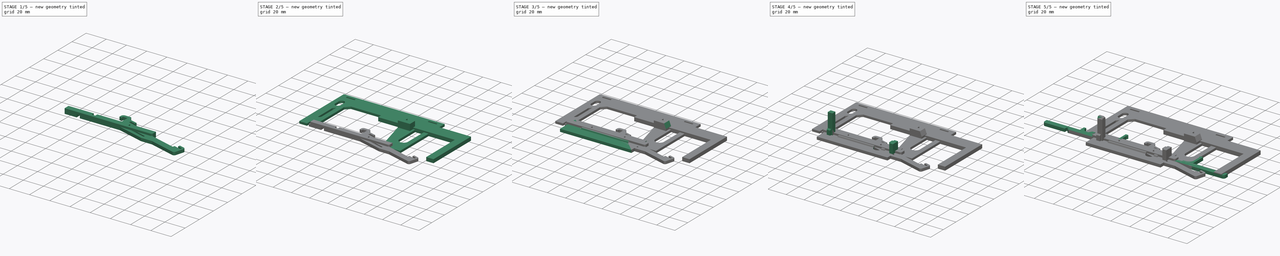
[diagram: build sequence overview — one tinted view per stage of 5, left to right]
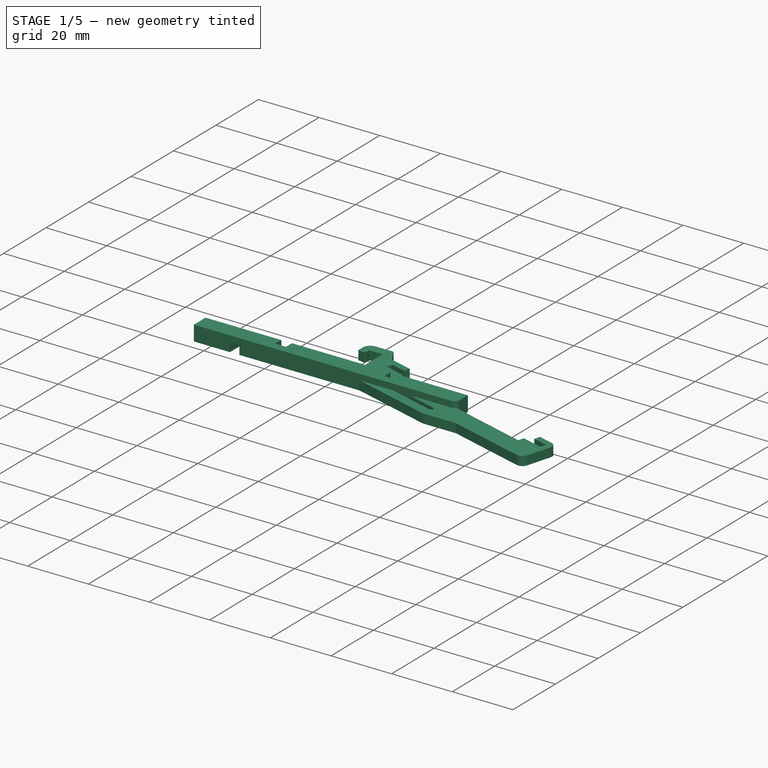
[diagram: stage 1 of 5 — iso view after this stage's code; geometry added in this stage tinted green]
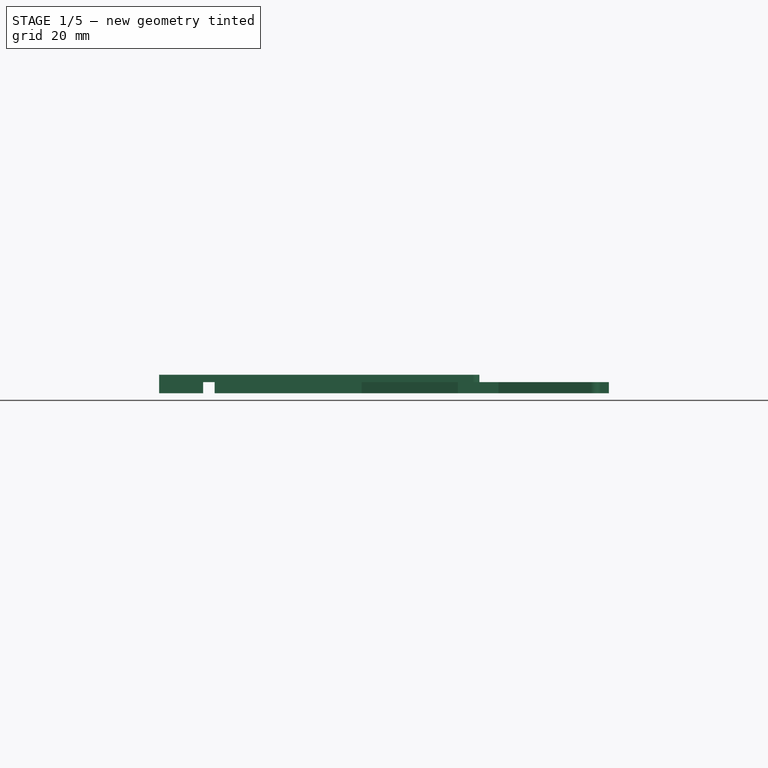
[diagram: stage 1 of 5 — front view after this stage's code; geometry added in this stage tinted green]
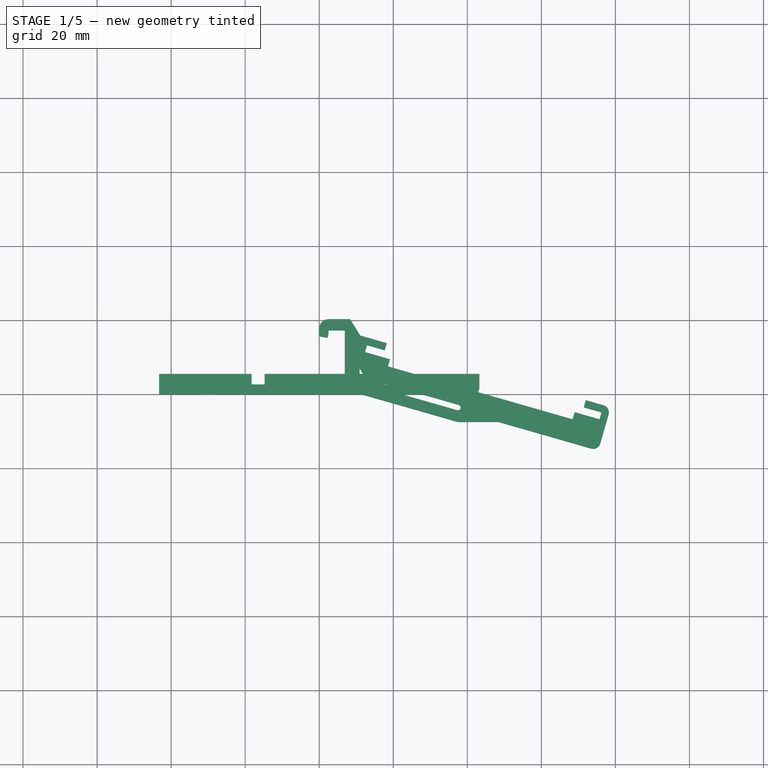
[diagram: stage 1 of 5 — top view after this stage's code; geometry added in this stage tinted green]
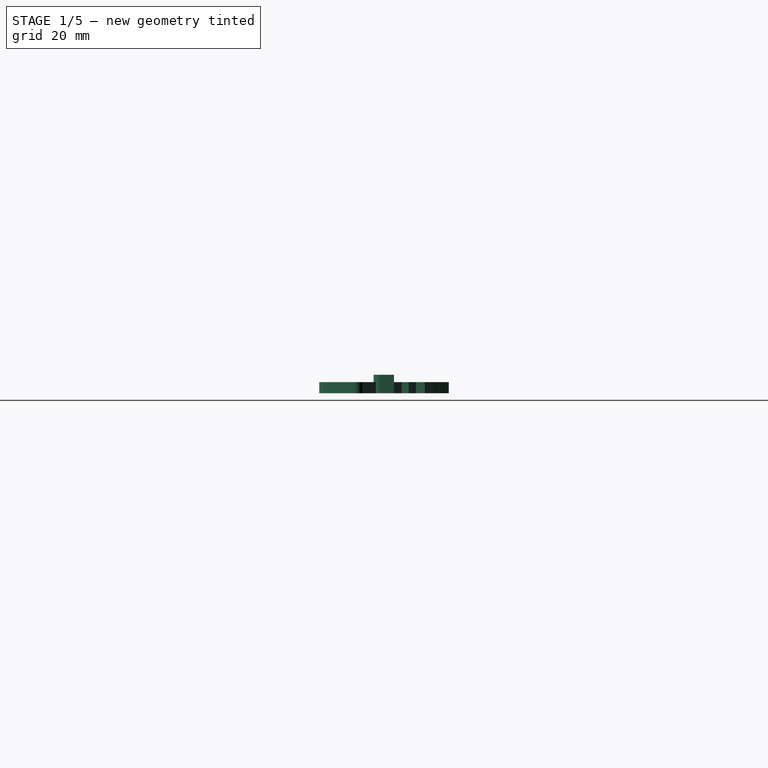
[diagram: stage 1 of 5 — right view after this stage's code; geometry added in this stage tinted green]
FCSTD DOCUMENT  (FreeCAD 0.19R24366 (Git))
Label: car-device2
License: All rights reserved
LicenseURL: http://en.wikipedia.org/wiki/All_rights_reserved
objects: Sketcher::SketchObject×18, PartDesign::Pad×14, PartDesign::Body×11, PartDesign::Chamfer×6, PartDesign::Plane×4, App::Part×4, PartDesign::Pocket×3, Spreadsheet::Sheet×1, Part::Extrusion×1, Part::MultiFuse×1, PartDesign::FeatureBase×1
note: 82 computed .brp shape members not serialized (recipe doc carries the construction recipe); baked Part::Feature solids carry a one-line shape summary decoded from their .brp

FEATURE [PartDesign::Body] Body007  label="Body: cross bar"
  Group = -> [Sketch014,Pad010]
  Origin = -> Origin010
  Placement = pos=(20,0,-5) rot=(0,0,1;0rad)
  Tip = -> Pad010
FEATURE [App::Part] Part001  label="Part: display mount"
  Group = -> [Body004,DatumPlane002,CopyDatumPlane002,Sketch011,Pad008,Fusion,Sketch012,Extrude001,Body005,Body006,Body007]
  Origin = -> Origin003
FEATURE [Sketcher::SketchObject] Sketch015
  FullyConstrained = false
  MapMode = 5
  Support = -> [XY_Plane012]
  expr: Constraints[117] = <<params>>.si_pcb_height + <<params>>.sm_pcb_clearence_y
  expr: Constraints[94] = <<params>>.si_pcb_height + <<params>>.sm_pcb_clearence_y
  expr: Constraints[88] = <<params>>.si_length + <<params>>.sm_pcb_clearance_x
  expr: Constraints[29] = <<params>>.sm_clamp_angle
  expr: Constraints[32] = <<params>>.sm_clamp_teeth_height
  expr: Constraints[68] = 180 - <<params>>.sm_clamp_angle
  expr: Constraints[33] = <<params>>.sm_clamp_teeth_height
  expr: Constraints[71] = <<params>>.sm_pcb_angle
  expr: Constraints[62] = <<params>>.dm_cross_bar_width + <<params>>.dm_cross_bar_clearance_x
  expr: Constraints[27] = <<params>>.sm_clamp_open_angle
  expr: Constraints[28] = 180 - <<params>>.sm_clamp_open_angle
  expr: Constraints[31] = <<params>>.dm_cross_bar_height + <<params>>.dm_cross_bar_clearance_y
  sketch-geometry (43):
    g0: LineSegment StartX=2.5 StartY=0 StartZ=0 EndX=11.4616 EndY=0 EndZ=0
    g1: LineSegment StartX=76.7984 StartY=-2.94198 StartZ=0 EndX=71.9921 EndY=-1.56379 EndZ=0
    g2: LineSegment StartX=71.9921 StartY=-1.56379 StartZ=0 EndX=71.4408 EndY=-3.48631 EndZ=0
    g3: LineSegment StartX=71.4408 StartY=-3.48631 StartZ=0 EndX=76.2471 EndY=-4.8645 EndZ=0
    g4: LineSegment StartX=76.2471 StartY=-4.8645 StartZ=0 EndX=75.7097 EndY=-6.73896 EndZ=0
    g5: LineSegment StartX=75.7097 StartY=-6.73896 StartZ=0 EndX=68.9808 EndY=-4.8095 EndZ=0
    g6: LineSegment StartX=68.9808 StartY=-4.8095 StartZ=0 EndX=68.4295 EndY=-6.73202 EndZ=0
    g7: LineSegment StartX=68.4295 StartY=-6.73202 StartZ=0 EndX=18.5401 EndY=7.57355 EndZ=0
    g8: LineSegment StartX=18.5401 StartY=7.57355 StartZ=0 EndX=19.0913 EndY=9.49608 EndZ=0
    g9: LineSegment StartX=19.0913 StartY=9.49608 StartZ=0 EndX=12.3625 EndY=11.4255 EndZ=0
    g10: LineSegment StartX=12.3625 StartY=11.4255 StartZ=0 EndX=12.9 EndY=13.3 EndZ=0
    g11: LineSegment StartX=12.9 StartY=13.3 StartZ=0 EndX=17.7063 EndY=11.9218 EndZ=0
    g12: LineSegment StartX=17.7063 StartY=11.9218 StartZ=0 EndX=18.2576 EndY=13.8443 EndZ=0
    g13: LineSegment StartX=18.2576 StartY=13.8443 StartZ=0 EndX=11.0733 EndY=15.9044 EndZ=0
    g14: LineSegment StartX=11.0733 StartY=15.9044 StartZ=0 EndX=8.37016 EndY=20.3 EndZ=0
    g15: LineSegment StartX=8.37016 StartY=20.3 StartZ=0 EndX=2.5 EndY=20.3 EndZ=0
    g16: LineSegment StartX=0 StartY=17.8 StartZ=0 EndX=0 EndY=15.6944 EndZ=0
    g17: LineSegment StartX=0 StartY=15.6944 StartZ=0 EndX=2.2367 EndY=15.3 EndZ=0
    g18: LineSegment StartX=2.5 StartY=17.3 StartZ=0 EndX=6.9 EndY=17.3 EndZ=0
    g19: LineSegment StartX=6.9 StartY=17.3 StartZ=0 EndX=6.9 EndY=13.3 EndZ=0
    g20: LineSegment StartX=6.9 StartY=13.3 StartZ=0 EndX=12.5823 EndY=4.36 EndZ=0
    g21: LineSegment StartX=37.2576 StartY=-4.27597 StartZ=0 EndX=11.8833 EndY=3 EndZ=0
    g22: LineSegment StartX=11.8833 StartY=3 StartZ=0 EndX=8.02662 EndY=7 EndZ=0
    g23: LineSegment StartX=8.02662 StartY=7 StartZ=0 EndX=6.9 EndY=7 EndZ=0
    g24: LineSegment StartX=6.9 StartY=7 StartZ=0 EndX=6.9 EndY=3 EndZ=0
    g25: LineSegment StartX=6.9 StartY=3 StartZ=0 EndX=2.5 EndY=3 EndZ=0
    g26: LineSegment StartX=2.5 StartY=3 StartZ=0 EndX=1.9641 EndY=5 EndZ=0
    g27: LineSegment StartX=1.9641 StartY=5 StartZ=0 EndX=0 EndY=4.65368 EndZ=0
    g28: LineSegment StartX=0 StartY=4.65368 StartZ=0 EndX=0 EndY=2.5 EndZ=0
    g29: ArcOfCircle CenterX=2.5 CenterY=2.5 CenterZ=0 NormalX=0 NormalY=0 NormalZ=1 AngleXU=0 Radius=2.5 StartAngle=3.14159 EndAngle=4.71239
    g30: ArcOfCircle CenterX=2.5 CenterY=17.8 CenterZ=0 NormalX=0 NormalY=0 NormalZ=1 AngleXU=0 Radius=2.5 StartAngle=1.5708 EndAngle=3.14159
    g31: LineSegment StartX=12.5823 StartY=4.36 StartZ=0 EndX=37.671 EndY=-2.83408 EndZ=0
    g32: ArcOfCircle CenterX=37.4643 CenterY=-3.55503 CenterZ=0 NormalX=0 NormalY=0 NormalZ=1 AngleXU=0 Radius=0.75 StartAngle=4.43314 EndAngle=7.57473
    g33: ArcOfCircle CenterX=76.2471 CenterY=-4.8645 CenterZ=0 NormalX=0 NormalY=0 NormalZ=1 AngleXU=0 Radius=2 StartAngle=6.00393 EndAngle=7.57473
    g34: LineSegment StartX=48.4318 StartY=-7.45615 StartZ=0 EndX=73.4472 EndY=-14.6292 EndZ=0
    g35: LineSegment StartX=75.921 StartY=-13.258 StartZ=0 EndX=78.1697 EndY=-5.41578 EndZ=0
    g36: ArcOfCircle CenterX=73.9984 CenterY=-12.7067 CenterZ=0 NormalX=0 NormalY=0 NormalZ=1 AngleXU=0 Radius=2 StartAngle=4.43314 EndAngle=6.00393
    g37: LineSegment StartX=2.5 StartY=17.3 StartZ=0 EndX=2.5 EndY=16.2827 EndZ=0
    g38: LineSegment StartX=2.5 StartY=16.2827 StartZ=0 EndX=2.2367 EndY=15.3 EndZ=0
    g39: LineSegment StartX=-11.4978 StartY=20.2959 StartZ=0 EndX=89.8479 EndY=-8.76445 EndZ=0
    g40: LineSegment StartX=40.0639 StartY=5.51087 StartZ=0 EndX=34.6785 EndY=-13.2704 EndZ=0
    g41: LineSegment StartX=11.4616 StartY=0 StartZ=0 EndX=37.4643 EndY=-7.45615 EndZ=0
    g42: LineSegment StartX=37.4643 StartY=-7.45615 StartZ=0 EndX=48.4318 EndY=-7.45615 EndZ=0
  constraints (119):
    c: Coincident(g1,g2)
    c: Coincident(g2,g3)
    c: Coincident(g3,g4)
    c: Coincident(g4,g5)
    c: Coincident(g5,g6)
    c: Coincident(g6,g7)
    c: Coincident(g7,g8)
    c: Coincident(g8,g9)
    c: Coincident(g9,g10)
    c: Coincident(g10,g11)
    c: Coincident(g11,g12)
    c: Coincident(g12,g13)
    c: Coincident(g13,g14)
    c: Coincident(g14,g15)
    c: Horizontal(g15)
    c: PointOnObject(g16,g-2)
    c: Coincident(g16,g17)
    c: Coincident(g18,g19)
    c: Coincident(g21,g22)
    c: Coincident(g22,g23)
    c: Coincident(g23,g24)
    c: Coincident(g24,g25)
    c: Horizontal(g25)
    c: Coincident(g25,g26)
    c: Coincident(g26,g27)
    c: PointOnObject(g27,g-2)
    c: Coincident(g27,g28)
    c: Angle(g-2,g17) = 1.39626
    c: Angle(g-2,g27) = 1.74533
    c: Angle(g-2,g26) = 0.261799
    c: Horizontal(g18)
    c: DistanceY(g25,g18) = 14.3
    c: DistanceY(g17,g18) = 2
    c: DistanceY(g26,g26) = 2
    c: DistanceX(g25,g18) = 0
    c: Vertical(g24)
    c: Vertical(g19)
    c: DistanceY(g19,g19) = 4
    c: DistanceY(g24,g24) = 4
    c: Horizontal(g23)
    c: DistanceY(g24,g21) = 0
    c: Tangent(g28,g29) = -1.5708
    c: Tangent(g0,g29) = -1.5708
    c: Tangent(g16,g30) = -1.5708
    c: Tangent(g15,g30) = -1.5708
    c: DistanceX(g28,g29) = 2.5
    c: DistanceX(g16,g30) = 2.5
    c: Vertical(g16)
    c: Vertical(g28)
    c: DistanceY(g-1,g25) = 3
    c: DistanceY(g18,g15) = 3
    c: Coincident(g20,g31)
    c: DistanceX(g19,g10) = 6
    c: DistanceX(g19,g23) = 0
    c: Coincident(g32,g31)
    c: Coincident(g32,g21)
    c: Tangent(g1,g33) = -1.5708
    c: Radius(g33) = 2
    c: Coincident(g35,g33)
    c: Tangent(g34,g36) = -1.5708
    c: Tangent(g35,g36) = -1.5708
    c: Radius(g36) = 2
    c: DistanceX(g18,g18) = 4.4
    c: Coincident(g19,g20)
    c: Coincident(g18,g37)
    c: Vertical(g37)
    c: Coincident(g37,g38)
    c: Coincident(g38,g17)
    c: Angle(g-2,g38) = 2.87979
    c: Equal(g38,g37)
    c: DistanceX(g15,g18) = 0
    c: Angle(g39,g-1) = 0.279253
    c: PointOnObject(g0,g-1)
    c: Horizontal(g0)
    c: Parallel(g31,g39)
    c: Parallel(g21,g31)
    c: Parallel(g9,g39)
    c: Parallel(g9,g11)
    c: Parallel(g13,g39)
    c: Perpendicular(g10,g9)
    c: Perpendicular(g12,g11)
    c: Distance(g11) = 5
    c: Distance(g9) = 7
    c: Perpendicular(g8,g9)
    c: Distance(g8) = 2
    c: Perpendicular(g3,g4)
    c: Perpendicular(g4,g5)
    c: Parallel(g5,g39)
    c: Distance(g10,g3) = 65.9
    c: PointOnObject(g10,g39)
    c: DistanceY(g19,g10) = 0
    c: Distance(g5) = 7
    c: Distance(g3) = 5
    c: Distance(g12) = 2
    c: Distance(g10) = 1.95
    c: PointOnObject(g2,g39)
    c: Perpendicular(g5,g6)
    c: Parallel(g7,g39)
    c: Perpendicular(g2,g3)
    c: Parallel(g1,g39)
    c: Perpendicular(g1,g35)
    c: Distance(g2) = 2
    c: Distance(g3,g33) = 2
    c: Parallel(g34,g39)
    c: PointOnObject(g40,g39)
    c: Perpendicular(g39,g40)
    c: PointOnObject(g32,g40)
    c: PointOnObject(g31,g40)
    c: PointOnObject(g21,g40)
    c: Distance(g31,g21) = 1.5
    c: Coincident(g0,g41)
    c: Coincident(g41,g42)
    c: Parallel(g41,g21)
    c: Distance(g0,g21) = 3
    c: Coincident(g42,g34)
    c: Horizontal(g42)
    c: DistanceX(g41,g32) = 0
    c: Distance(g4) = 1.95
    c: PointOnObject(g33,g39)
FEATURE [PartDesign::Pad] Pad011
  Direction = (1,1,1)
  Length = 3
  Length2 = 100
  Profile = -> Sketch015
  Type = 0
  expr: Length = <<params>>.sm_thickness
FEATURE [PartDesign::Body] Body008  label="Body: sim hat mount A"
  Group = -> [Sketch015,Pad011]
  Origin = -> Origin012
  Placement = pos=(-80,0,-30) rot=(0,0,1;0rad)
  Tip = -> Pad011
FEATURE [Sketcher::SketchObject] Sketch017
  FullyConstrained = false
  MapMode = 5
  Support = -> [XY_Plane013]
  expr: Constraints[20] = <<params>>.dm_cross_bar_height + <<params>>.dm_cross_bar_clearance_y
  expr: Constraints[35] = <<params>>.dm_cross_bar_width + <<params>>.dm_cross_bar_clearance_x
  expr: Constraints[17] = 180 - <<params>>.sm_clamp_open_angle
  expr: Constraints[22] = <<params>>.sm_clamp_teeth_height
  expr: Constraints[16] = <<params>>.sm_clamp_open_angle
  expr: Constraints[21] = <<params>>.sm_clamp_teeth_height
  expr: Constraints[40] = 180 - <<params>>.sm_clamp_angle
  expr: Constraints[57] = <<params>>.si_pcb_height + <<params>>.sm_pcb_clearence_y
  expr: Constraints[18] = <<params>>.sm_clamp_angle
  expr: Constraints[43] = <<params>>.sm_pcb_angle
  sketch-geometry (24):
    g0: LineSegment StartX=2.5 StartY=0 StartZ=0 EndX=10.9 EndY=0 EndZ=0
    g1: LineSegment StartX=18.5401 StartY=7.57355 StartZ=0 EndX=19.0913 EndY=9.49608 EndZ=0
    g2: LineSegment StartX=19.0913 StartY=9.49608 StartZ=0 EndX=12.3625 EndY=11.4255 EndZ=0
    g3: LineSegment StartX=12.3625 StartY=11.4255 StartZ=0 EndX=12.9 EndY=13.3 EndZ=0
    g4: LineSegment StartX=12.9 StartY=13.3 StartZ=0 EndX=17.7063 EndY=11.9218 EndZ=0
    g5: LineSegment StartX=17.7063 StartY=11.9218 StartZ=0 EndX=18.2576 EndY=13.8443 EndZ=0
    g6: LineSegment StartX=18.2576 StartY=13.8443 StartZ=0 EndX=11.0733 EndY=15.9044 EndZ=0
    g7: LineSegment StartX=11.0733 StartY=15.9044 StartZ=0 EndX=8.37016 EndY=20.3 EndZ=0
    g8: LineSegment StartX=8.37016 StartY=20.3 StartZ=0 EndX=2.5 EndY=20.3 EndZ=0
    g9: LineSegment StartX=0 StartY=17.8 StartZ=0 EndX=0 EndY=15.6944 EndZ=0
    g10: LineSegment StartX=0 StartY=15.6944 StartZ=0 EndX=2.2367 EndY=15.3 EndZ=0
    g11: LineSegment StartX=2.5 StartY=17.3 StartZ=0 EndX=6.9 EndY=17.3 EndZ=0
    g12: LineSegment StartX=6.9 StartY=17.3 StartZ=0 EndX=6.9 EndY=3 EndZ=0
    g13: LineSegment StartX=6.9 StartY=3 StartZ=0 EndX=2.5 EndY=3 EndZ=0
    g14: LineSegment StartX=2.5 StartY=3 StartZ=0 EndX=1.9641 EndY=5 EndZ=0
    g15: LineSegment StartX=1.9641 StartY=5 StartZ=0 EndX=0 EndY=4.65368 EndZ=0
    g16: LineSegment StartX=0 StartY=4.65368 StartZ=0 EndX=0 EndY=2.5 EndZ=0
    g17: ArcOfCircle CenterX=2.5 CenterY=2.5 CenterZ=0 NormalX=0 NormalY=0 NormalZ=1 AngleXU=0 Radius=2.5 StartAngle=3.14159 EndAngle=4.71239
    g18: ArcOfCircle CenterX=2.5 CenterY=17.8 CenterZ=0 NormalX=0 NormalY=0 NormalZ=1 AngleXU=0 Radius=2.5 StartAngle=1.5708 EndAngle=3.14159
    g19: LineSegment StartX=2.5 StartY=17.3 StartZ=0 EndX=2.5 EndY=16.2827 EndZ=0
    g20: LineSegment StartX=2.5 StartY=16.2827 StartZ=0 EndX=2.2367 EndY=15.3 EndZ=0
    g21: LineSegment StartX=-11.4978 StartY=20.2959 StartZ=0 EndX=89.8479 EndY=-8.76445 EndZ=0
    g22: LineSegment StartX=18.5401 StartY=7.57355 StartZ=0 EndX=10.9 EndY=7.57355 EndZ=0
    g23: LineSegment StartX=10.9 StartY=7.57355 StartZ=0 EndX=10.9 EndY=0 EndZ=0
  constraints (65):
    c: Coincident(g1,g2)
    c: Coincident(g2,g3)
    c: Coincident(g3,g4)
    c: Coincident(g4,g5)
    c: Coincident(g5,g6)
    c: Coincident(g6,g7)
    c: Coincident(g7,g8)
    c: Horizontal(g8)
    c: PointOnObject(g9,g-2)
    c: Coincident(g9,g10)
    c: Coincident(g12,g13)
    c: Horizontal(g13)
    c: Coincident(g13,g14)
    c: Coincident(g14,g15)
    c: PointOnObject(g15,g-2)
    c: Coincident(g15,g16)
    c: Angle(g-2,g10) = 1.39626
    c: Angle(g-2,g15) = 1.74533
    c: Angle(g-2,g14) = 0.261799
    c: Horizontal(g11)
    c: DistanceY(g13,g11) = 14.3
    c: DistanceY(g10,g11) = 2
    c: DistanceY(g14,g14) = 2
    c: DistanceX(g13,g11) = 0
    c: Vertical(g12)
    c: Tangent(g16,g17) = -1.5708
    c: Tangent(g0,g17) = -1.5708
    c: Tangent(g9,g18) = -1.5708
    c: Tangent(g8,g18) = -1.5708
    c: DistanceX(g16,g17) = 2.5
    c: DistanceX(g9,g18) = 2.5
    c: Vertical(g9)
    c: Vertical(g16)
    c: DistanceY(g-1,g13) = 3
    c: DistanceY(g11,g8) = 3
    c: DistanceX(g11,g11) = 4.4
    c: Coincident(g11,g19)
    c: Vertical(g19)
    c: Coincident(g19,g20)
    c: Coincident(g20,g10)
    c: Angle(g-2,g20) = 2.87979
    c: Equal(g20,g19)
    c: DistanceX(g8,g11) = 0
    c: Angle(g21,g-1) = 0.279253
    c: PointOnObject(g0,g-1)
    c: Horizontal(g0)
    c: Parallel(g2,g21)
    c: Parallel(g2,g4)
    c: Parallel(g6,g21)
    c: Perpendicular(g3,g2)
    c: Perpendicular(g5,g4)
    c: Distance(g4) = 5
    c: Distance(g2) = 7
    c: Perpendicular(g1,g2)
    c: Distance(g1) = 2
    c: PointOnObject(g3,g21)
    c: Distance(g5) = 2
    c: Distance(g3) = 1.95
    c: Coincident(g12,g11)
    c: Coincident(g1,g22)
    c: Horizontal(g22)
    c: Coincident(g22,g23)
    c: Coincident(g23,g0)
    c: Vertical(g23)
    c: DistanceX(g12,g0) = 4
FEATURE [PartDesign::Pad] Pad012
  Direction = (1,1,1)
  Length = 3
  Length2 = 100
  Profile = -> Sketch017
  Type = 0
  expr: Length = <<params>>.sm_thickness
FEATURE [PartDesign::Body] Body009  label="Body: sim hat mount B"
  Group = -> [Sketch017,Pad012]
  Origin = -> Origin013
  Placement = pos=(-80,0,-45) rot=(0,0,1;0rad)
  Tip = -> Pad012
FEATURE [App::Part] Part003  label="Part: sim hat mount"
  Group = -> [Body008,Body009]
  Origin = -> Origin011
FEATURE [Sketcher::SketchObject] Sketch018
  FullyConstrained = true
  MapMode = 5
  Support = -> [XY_Plane015]
  expr: Constraints[30] = <<params>>.bm_thickness + 0.3
  expr: Constraints[5] = <<params>>.bm_lift
  expr: Constraints[16] = 0.5 * <<params>>.bm_lift + 0.1
  expr: Constraints[29] = <<params>>.bm_thickness + 0.3
  sketch-geometry (13):
    g0: LineSegment StartX=-43.25 StartY=1.07239e-11 StartZ=0 EndX=41.45 EndY=1.07239e-11 EndZ=0
    g1: LineSegment StartX=43.25 StartY=1.8 StartZ=0 EndX=43.25 EndY=5.5 EndZ=0
    g2: LineSegment StartX=43.25 StartY=5.5 StartZ=0 EndX=21.25 EndY=5.5 EndZ=0
    g3: LineSegment StartX=-43.25 StartY=5.5 StartZ=0 EndX=-43.25 EndY=1.07239e-11 EndZ=0
    g4: ArcOfCircle CenterX=41.45 CenterY=1.8 CenterZ=0 NormalX=0 NormalY=0 NormalZ=1 AngleXU=0 Radius=1.8 StartAngle=4.71239 EndAngle=6.28319
    g5: LineSegment StartX=21.25 StartY=5.5 StartZ=0 EndX=21.25 EndY=2.65 EndZ=0
    g6: LineSegment StartX=21.25 StartY=2.65 StartZ=0 EndX=17.75 EndY=2.65 EndZ=0
    g7: LineSegment StartX=17.75 StartY=2.65 StartZ=0 EndX=17.75 EndY=5.5 EndZ=0
    g8: LineSegment StartX=-43.25 StartY=5.5 StartZ=0 EndX=-18.25 EndY=5.5 EndZ=0
    g9: LineSegment StartX=-18.25 StartY=5.5 StartZ=0 EndX=-18.25 EndY=2.65 EndZ=0
    g10: LineSegment StartX=-18.25 StartY=2.65 StartZ=0 EndX=-14.75 EndY=2.65 EndZ=0
    g11: LineSegment StartX=-14.75 StartY=2.65 StartZ=0 EndX=-14.75 EndY=5.5 EndZ=0
    g12: LineSegment StartX=-14.75 StartY=5.5 StartZ=0 EndX=17.75 EndY=5.5 EndZ=0
  constraints (40):
    c: Vertical(g1)
    c: Coincident(g1,g2)
    c: Horizontal(g2)
    c: Vertical(g3)
    c: Symmetric(g3,g1,g-2)
    c: DistanceY(g-1,g3) = 5.5
    c: Tangent(g1,g4) = -1.5708
    c: Tangent(g0,g4) = -1.5708
    c: Radius(g4) = 1.8
    c: DistanceY(g-1,g0) = 0
    c: Horizontal(g0)
    c: Coincident(g5,g6)
    c: Horizontal(g6)
    c: Coincident(g6,g7)
    c: DistanceX(g5,g1) = 22
    c: Vertical(g5)
    c: DistanceY(g5,g5) = 2.85
    c: Coincident(g8,g9)
    c: Vertical(g9)
    c: Coincident(g9,g10)
    c: Horizontal(g10)
    c: Coincident(g10,g11)
    c: Vertical(g11)
    c: Coincident(g11,g12)
    c: Coincident(g12,g7)
    c: Horizontal(g12)
    c: Vertical(g7)
    c: DistanceY(g10,g6) = 0
    c: DistanceX(g11,g1) = 58
    c: DistanceX(g6,g6) = 3.5
    c: DistanceX(g10,g10) = 3.5
    c: DistanceY(g5,g7) = 0
    c: DistanceY(g11,g8) = 0
    c: Coincident(g5,g2)
    c: Coincident(g3,g8)
    c: DistanceX(g8,g8) = 25
    c: Coincident(g0,g3)
    c: DistanceX(g-1,g1) = 43.25
    c: DistanceX(g11,g-1) = 14.75
    c: DistanceX(g8,g-1) = 18.25
FEATURE [PartDesign::Pad] Pad013
  Direction = (1,1,1)
  Length = 5
  Length2 = 100
  Profile = -> Sketch018
  Type = 0
  expr: Length = <<params>>.dm_foot_mount_width
FEATURE [Sketcher::SketchObject] Sketch019
  FullyConstrained = false
  MapMode = 5
  Placement = pos=(0,0,0) rot=(1,0,0;1.5708rad)
  Support = -> [XZ_Plane015]
  sketch-geometry (5):
    g0: LineSegment StartX=15.25 StartY=-3 StartZ=0 EndX=7.25 EndY=-3 EndZ=0
    g1: LineSegment StartX=7.25 StartY=-3 StartZ=0 EndX=7.25 EndY=2 EndZ=0
    g2: LineSegment StartX=7.25 StartY=2 StartZ=0 EndX=15.25 EndY=2 EndZ=0
    g3: LineSegment StartX=15.25 StartY=2 StartZ=0 EndX=15.25 EndY=-3 EndZ=0
    g4: LineSegment StartX=43.25 StartY=5.01878 StartZ=0 EndX=43.25 EndY=0.083402 EndZ=0
  constraints (14):
    c: Coincident(g0,g1)
    c: Coincident(g1,g2)
    c: Coincident(g2,g3)
    c: Coincident(g3,g0)
    c: Horizontal(g0)
    c: Horizontal(g2)
    c: Vertical(g1)
    c: Vertical(g3)
    c: Vertical(g4)
    c: DistanceX(g-1,g4) = 43.25
    c: DistanceX(g2,g4) = 28
    c: DistanceX(g1,g4) = 36
    c: DistanceY(g-1,g1) = 2
    c: DistanceY(g3,g3) = 5
FEATURE [PartDesign::Pocket] Pocket001
  BaseFeature = -> Pad013
  Length = 10
  Length2 = 100
  Profile = -> Sketch019
  Type = 0
FEATURE [Sketcher::SketchObject] Sketch020
  FullyConstrained = true
  MapMode = 5
  Placement = pos=(0,0,0) rot=(1,0,0;1.5708rad)
  Support = -> [XZ_Plane015]
  expr: Constraints[9] = 18.25 + 10
  sketch-geometry (4):
    g0: LineSegment StartX=-31.35 StartY=3 StartZ=0 EndX=-28.25 EndY=3 EndZ=0
    g1: LineSegment StartX=-28.25 StartY=3 StartZ=0 EndX=-28.25 EndY=-2 EndZ=0
    g2: LineSegment StartX=-28.25 StartY=-2 StartZ=0 EndX=-31.35 EndY=-2 EndZ=0
    g3: LineSegment StartX=-31.35 StartY=-2 StartZ=0 EndX=-31.35 EndY=3 EndZ=0
  constraints (12):
    c: Coincident(g0,g1)
    c: Coincident(g1,g2)
    c: Coincident(g2,g3)
    c: Coincident(g3,g0)
    c: Horizontal(g0)
    c: Horizontal(g2)
    c: Vertical(g1)
    c: Vertical(g3)
    c: DistanceY(g1,g1) = 5
    c: DistanceX(g1,g-1) = 28.25
    c: DistanceX(g0,g0) = 3.1
    c: DistanceY(g-1,g0) = 3
FEATURE [PartDesign::Pocket] Pocket002
  BaseFeature = -> Pocket001
  Length = 10
  Length2 = 100
  Profile = -> Sketch020
  Type = 0
FEATURE [PartDesign::Body] Body010  label="Body: mount-bar short C"
  Group = -> [Sketch018,Pad013,Sketch019,Pocket001,Sketch020,Pocket002]
  Origin = -> Origin015
  Placement = pos=(0,0,-102) rot=(0,0,1;0rad)
  Tip = -> Pocket002
FEATURE [App::Part] Part  label="Part: battery mount"
  Group = -> [Body,Body001,Body003,Body010]
  Origin = -> Origin
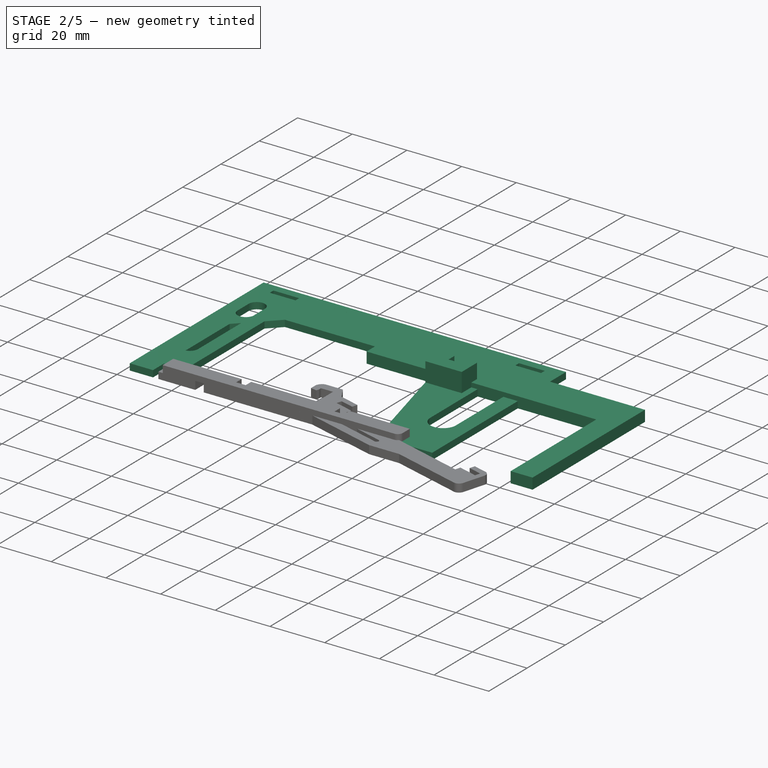
[diagram: stage 2 of 5 — iso view after this stage's code; geometry added in this stage tinted green]
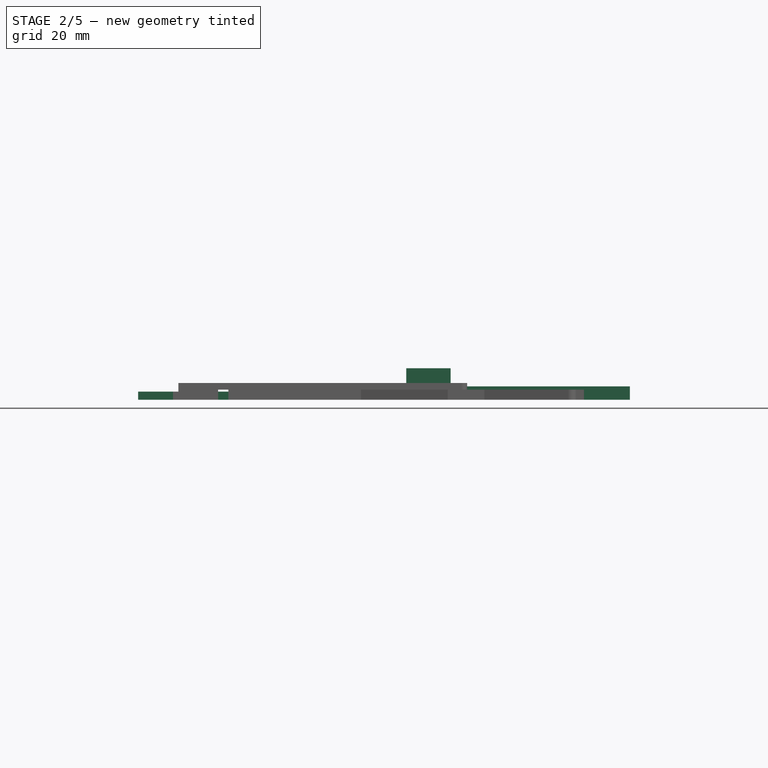
[diagram: stage 2 of 5 — front view after this stage's code; geometry added in this stage tinted green]
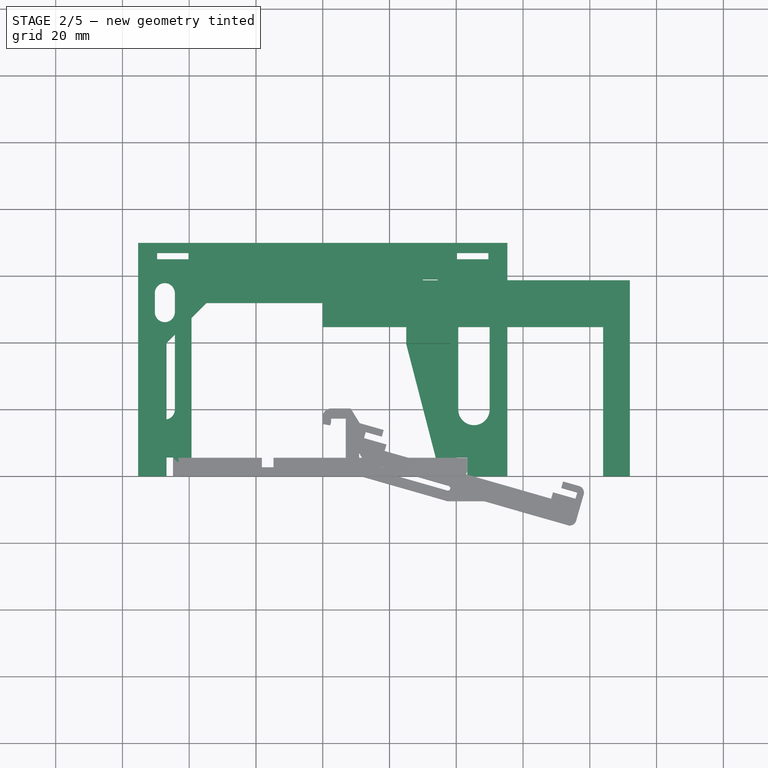
[diagram: stage 2 of 5 — top view after this stage's code; geometry added in this stage tinted green]
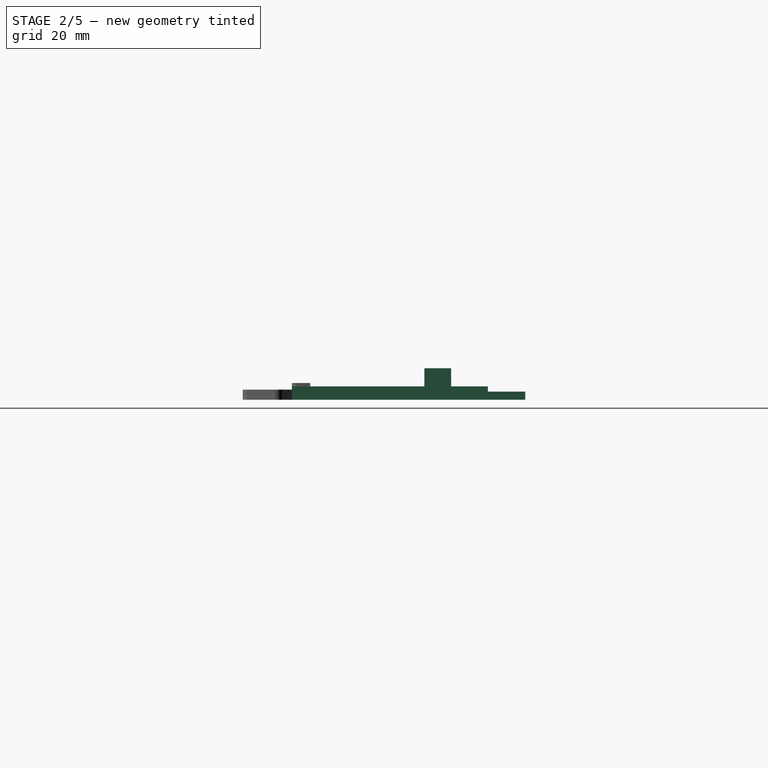
[diagram: stage 2 of 5 — right view after this stage's code; geometry added in this stage tinted green]
FEATURE [PartDesign::Body] Body  label="Body: mount-bar long"
  Group = -> [Sketch,Pad007]
  Origin = -> Origin001
  Placement = pos=(0,0,-70) rot=(0,0,1;0rad)
  Tip = -> Pad007
FEATURE [PartDesign::Body] Body004  label="Body: display mount"
  Origin = -> Origin007
FEATURE [Sketcher::SketchObject] Sketch011
  FullyConstrained = true
  MapMode = 5
  expr: Constraints[120] = <<params>>.dm_cross_bar_x2
  expr: Constraints[116] = <<params>>.dm_cross_bar_y1
  expr: Constraints[57] = <<params>>.dm_foot_mount_width + 0.3
  expr: Constraints[119] = <<params>>.dm_cross_bar_y2
  expr: Constraints[55] = <<params>>.dm_top_dist
  expr: Constraints[60] = <<params>>.dp_length + 1.5 * <<params>>.dm_mount_clearence_x
  expr: Constraints[113] = <<params>>.dm_cross_bar_x1
  expr: Constraints[59] = <<params>>.bm_lift + <<params>>.bm_bar_clearance_height
  expr: Constraints[58] = <<params>>.bm_lift + <<params>>.bm_bar_clearance_height
  expr: Constraints[49] = <<params>>.dp_mount_width + <<params>>.dm_mount_clearence_x
  expr: Constraints[32] = <<params>>.dp_length + 12
  expr: Constraints[56] = <<params>>.bm_thickness + <<params>>.bm_bar_clearance_x
  expr: Constraints[54] = <<params>>.dm_mount_height
  expr: Constraints[53] = <<params>>.dp_pcb_thickness + <<params>>.dm_mount_clearance_y
  expr: Constraints[50] = <<params>>.dp_mount_width + <<params>>.dm_mount_clearence_x
  sketch-geometry (39):
    g0: LineSegment StartX=-55.3 StartY=0 StartZ=0 EndX=-55.3 EndY=69.9 EndZ=0
    g1: LineSegment StartX=-55.3 StartY=69.9 StartZ=0 EndX=55.3 EndY=69.9 EndZ=0
    g2: LineSegment StartX=55.3 StartY=69.9 StartZ=0 EndX=55.3 EndY=0 EndZ=0
    g3: LineSegment StartX=55.3 StartY=0 StartZ=0 EndX=43.3 EndY=0 EndZ=0
    g4: LineSegment StartX=43.3 StartY=0 StartZ=0 EndX=43.3 EndY=5.65 EndZ=0
    g5: LineSegment StartX=43.3 StartY=5.65 StartZ=0 EndX=39.85 EndY=5.65 EndZ=0
    g6: LineSegment StartX=39.85 StartY=5.65 StartZ=0 EndX=39.85 EndY=0 EndZ=0
    g7: LineSegment StartX=39.85 StartY=0 StartZ=0 EndX=35.3 EndY=0 EndZ=0
    g8: LineSegment StartX=19 StartY=53.9 StartZ=0 EndX=-33.3 EndY=53.9 EndZ=0
    g9: LineSegment StartX=-39.3 StartY=47.9 StartZ=0 EndX=-39.3 EndY=0 EndZ=0
    g10: LineSegment StartX=-39.3 StartY=0 StartZ=0 EndX=-44.85 EndY=0 EndZ=0
    g11: LineSegment StartX=-44.85 StartY=0 StartZ=0 EndX=-44.85 EndY=5.65 EndZ=0
    g12: LineSegment StartX=-44.85 StartY=5.65 StartZ=0 EndX=-50.15 EndY=5.65 EndZ=0
    g13: LineSegment StartX=-50.15 StartY=5.65 StartZ=0 EndX=-50.15 EndY=0 EndZ=0
    g14: LineSegment StartX=-50.15 StartY=0 StartZ=0 EndX=-55.3 EndY=0 EndZ=0
    g15: LineSegment StartX=-49.6 StartY=66.9 StartZ=0 EndX=-40.2 EndY=66.9 EndZ=0
    g16: LineSegment StartX=-40.2 StartY=66.9 StartZ=0 EndX=-40.2 EndY=65 EndZ=0
    g17: LineSegment StartX=-40.2 StartY=65 StartZ=0 EndX=-49.6 EndY=65 EndZ=0
    g18: LineSegment StartX=-49.6 StartY=65 StartZ=0 EndX=-49.6 EndY=66.9 EndZ=0
    g19: LineSegment StartX=49.6 StartY=66.9 StartZ=0 EndX=40.2 EndY=66.9 EndZ=0
    g20: LineSegment StartX=40.2 StartY=66.9 StartZ=0 EndX=40.2 EndY=65 EndZ=0
    g21: LineSegment StartX=40.2 StartY=65 StartZ=0 EndX=49.6 EndY=65 EndZ=0
    g22: LineSegment StartX=49.6 StartY=65 StartZ=0 EndX=49.6 EndY=66.9 EndZ=0
    g23: ArcOfCircle CenterX=-33.3 CenterY=47.9 CenterZ=0 NormalX=0 NormalY=0 NormalZ=1 AngleXU=0 Radius=6 StartAngle=1.5708 EndAngle=3.14159
    g24: LineSegment StartX=-50.3 StartY=54.9 StartZ=0 EndX=-50.3 EndY=20 EndZ=0
    g25: LineSegment StartX=-44.3 StartY=20 StartZ=0 EndX=-44.3 EndY=54.9 EndZ=0
    g26: LineSegment StartX=40.6 StartY=52.7 StartZ=0 EndX=40.6 EndY=20 EndZ=0
    g27: LineSegment StartX=50 StartY=20 StartZ=0 EndX=50 EndY=52.7 EndZ=0
    g28: ArcOfCircle CenterX=-47.3 CenterY=54.9 CenterZ=0 NormalX=0 NormalY=0 NormalZ=1 AngleXU=0 Radius=3 StartAngle=5e-16 EndAngle=3.14159
    g29: ArcOfCircle CenterX=-47.3 CenterY=20 CenterZ=0 NormalX=0 NormalY=0 NormalZ=1 AngleXU=0 Radius=3 StartAngle=3.14159 EndAngle=6.28319
    g30: ArcOfCircle CenterX=45.3 CenterY=52.7 CenterZ=0 NormalX=0 NormalY=0 NormalZ=1 AngleXU=0 Radius=4.7 StartAngle=2e-16 EndAngle=3.14159
    g31: ArcOfCircle CenterX=45.3 CenterY=20 CenterZ=0 NormalX=0 NormalY=0 NormalZ=1 AngleXU=0 Radius=4.7 StartAngle=3.14159 EndAngle=6.28319
    g32: LineSegment StartX=35.3 StartY=0 StartZ=0 EndX=25 EndY=39.7 EndZ=0
    g33: LineSegment StartX=25 StartY=39.7 StartZ=0 EndX=25 EndY=47.9 EndZ=0
    g34: ArcOfCircle CenterX=19 CenterY=47.9 CenterZ=0 NormalX=0 NormalY=0 NormalZ=1 AngleXU=0 Radius=6 StartAngle=1e-16 EndAngle=1.5708
    g35: LineSegment StartX=30 StartY=59 StartZ=0 EndX=34.4 EndY=59 EndZ=0
    g36: LineSegment StartX=34.4 StartY=59 StartZ=0 EndX=34.4 EndY=44.7 EndZ=0
    g37: LineSegment StartX=34.4 StartY=44.7 StartZ=0 EndX=30 EndY=44.7 EndZ=0
    g38: LineSegment StartX=30 StartY=44.7 StartZ=0 EndX=30 EndY=59 EndZ=0
  constraints (122):
    c: PointOnObject(g0,g-1)
    c: Vertical(g0)
    c: Coincident(g0,g1)
    c: Coincident(g1,g2)
    c: PointOnObject(g2,g-1)
    c: Vertical(g2)
    c: Coincident(g2,g3)
    c: PointOnObject(g3,g-1)
    c: Coincident(g3,g4)
    c: Vertical(g4)
    c: Coincident(g4,g5)
    c: Horizontal(g5)
    c: Coincident(g5,g6)
    c: PointOnObject(g6,g-1)
    c: Vertical(g6)
    c: Coincident(g6,g7)
    c: PointOnObject(g7,g-1)
    c: Horizontal(g8)
    c: PointOnObject(g9,g-1)
    c: Vertical(g9)
    c: Coincident(g9,g10)
    c: PointOnObject(g10,g-1)
    c: Coincident(g10,g11)
    c: Vertical(g11)
    c: Coincident(g11,g12)
    c: Horizontal(g12)
    c: Coincident(g12,g13)
    c: PointOnObject(g13,g-1)
    c: Vertical(g13)
    c: Coincident(g13,g14)
    c: Coincident(g14,g0)
    c: Symmetric(g0,g1,g-2)
    c: DistanceX(g1,g1) = 110.6
    c: Coincident(g15,g16)
    c: Coincident(g16,g17)
    c: Coincident(g17,g18)
    c: Coincident(g18,g15)
    c: Horizontal(g15)
    c: Horizontal(g17)
    c: Vertical(g16)
    c: Vertical(g18)
    c: Coincident(g19,g20)
    c: Coincident(g20,g21)
    c: Coincident(g21,g22)
    c: Coincident(g22,g19)
    c: Horizontal(g19)
    c: Horizontal(g21)
    c: Vertical(g20)
    c: Vertical(g22)
    c: DistanceX(g15,g15) = 9.4
    c: DistanceX(g19,g19) = 9.4
    c: DistanceY(g20,g16) = 0
    c: Symmetric(g15,g19,g-2)
    c: DistanceY(g18,g18) = 1.9
    c: DistanceY(g-1,g17) = 65
    c: DistanceY(g15,g0) = 3
    c: DistanceX(g5,g5) = 3.45
    c: DistanceX(g12,g12) = 5.3
    c: DistanceY(g6,g6) = 5.65
    c: DistanceY(g13,g13) = 5.65
    c: DistanceX(g15,g19) = 99.2
    c: Tangent(g9,g23) = -1.5708
    c: Tangent(g8,g23) = -1.5708
    c: DistanceX(g3,g3) = 12
    c: DistanceX(g7,g2) = 20
    c: DistanceY(g8,g0) = 16
    c: DistanceX(g9,g23) = 6
    c: DistanceX(g0,g9) = 16
    c: Vertical(g24)
    c: Vertical(g25)
    c: Vertical(g26)
    c: Vertical(g27)
    c: Coincident(g28,g24)
    c: Coincident(g28,g25)
    c: Coincident(g29,g25)
    c: Coincident(g29,g24)
    c: Coincident(g30,g26)
    c: Coincident(g30,g27)
    c: Coincident(g31,g27)
    c: Coincident(g31,g26)
    c: DistanceY(g24,g28) = 0
    c: DistanceY(g24,g25) = 0
    c: DistanceY(g29,g24) = 0
    c: DistanceY(g25,g24) = 0
    c: DistanceY(g-1,g29) = 20
    c: DistanceX(g24,g25) = 6
    c: DistanceX(g29,g9) = 8
    c: DistanceY(g26,g30) = 0
    c: DistanceY(g26,g27) = 0
    c: DistanceY(g31,g26) = 0
    c: DistanceY(g31,g27) = 0
    c: DistanceY(g-1,g31) = 20
    c: DistanceX(g7,g31) = 10
    c: DistanceX(g10,g-1) = 44.85
    c: DistanceY(g24,g0) = 15
    c: DistanceX(g26,g27) = 9.4
    c: DistanceY(g27,g1) = 17.2
    c: Coincident(g7,g32)
    c: Coincident(g32,g33)
    c: Vertical(g33)
    c: Tangent(g8,g34) = -1.5708
    c: Tangent(g33,g34) = -1.5708
    c: Diameter(g23) = 12
    c: DistanceY(g23,g34) = 0
    c: Diameter(g34) = 12
    c: Coincident(g35,g36)
    c: Coincident(g36,g37)
    c: Coincident(g37,g38)
    c: Coincident(g38,g35)
    c: Horizontal(g35)
    c: Horizontal(g37)
    c: Vertical(g36)
    c: Vertical(g38)
    c: DistanceX(g-1,g37) = 30
    c: DistanceX(g33,g37) = 5
    c: DistanceY(g32,g37) = 5
    c: DistanceY(g-1,g37) = 44.7
    c: DistanceX(g-1,g6) = 39.85
    c: DistanceX(g-1,g3) = 43.3
    c: DistanceY(g-1,g35) = 59
    c: DistanceX(g-1,g36) = 34.4
    c: DistanceX(g10,g6) = 84.7
FEATURE [PartDesign::Pad] Pad008
  Direction = (1,1,1)
  Length = 2.4
  Length2 = 100
  Profile = -> Sketch011
  Type = 0
  expr: Length = <<params>>.dm_mount_thickness
FEATURE [PartDesign::Body] Body002  label="Body: base_plate"
  Group = -> [Sketch002,Pad002,DatumPlane,Sketch003,Pad003,Chamfer,Sketch004,Pad004,DatumPlane001,Sketch005,Pad005,Sketch006,Pad006,Sketch007,Pocket,Chamfer001,Chamfer002,Chamfer003]
  Origin = -> Origin005
  Tip = -> Chamfer003
FEATURE [App::Part] Part002  label="Part: raspi mount"
  Group = -> [Body002]
  Origin = -> Origin004
FEATURE [PartDesign::Plane] DatumPlane002
  Length = 60
  MapMode = 2
  Placement = pos=(0,0,2.4) rot=(0,0,1;0rad)
  ResizeMode = 0
  Width = 60
  expr: .Placement.Base.z = <<params>>.dm_mount_thickness
FEATURE [PartDesign::Plane] CopyDatumPlane002
  Length = 131.09
  Placement = pos=(0,0,2.4) rot=(0,0,1;0rad)
  ResizeMode = 0
  Width = 115.39
FEATURE [Sketcher::SketchObject] Sketch012
  FullyConstrained = true
  MapMode = 5
  Placement = pos=(0,0,2.4) rot=(0,0,1;0rad)
  Support = -> [CopyDatumPlane002]
  sketch-geometry (8):
    g0: LineSegment StartX=25 StartY=47.7 StartZ=0 EndX=30 EndY=47.7 EndZ=0
    g1: LineSegment StartX=30 StartY=47.7 StartZ=0 EndX=30 EndY=44.7 EndZ=0
    g2: LineSegment StartX=30 StartY=44.7 StartZ=0 EndX=34.3 EndY=44.7 EndZ=0
    g3: LineSegment StartX=34.3 StartY=44.7 StartZ=0 EndX=34.3 EndY=47.7 EndZ=0
    g4: LineSegment StartX=34.3 StartY=47.7 StartZ=0 EndX=38.3 EndY=47.7 EndZ=0
    g5: LineSegment StartX=38.3 StartY=47.7 StartZ=0 EndX=38.3 EndY=39.7 EndZ=0
    g6: LineSegment StartX=38.3 StartY=39.7 StartZ=0 EndX=25 EndY=39.7 EndZ=0
    g7: LineSegment StartX=25 StartY=39.7 StartZ=0 EndX=25 EndY=47.7 EndZ=0
  constraints (24):
    c: Horizontal(g0)
    c: Coincident(g0,g1)
    c: Coincident(g1,g2)
    c: Horizontal(g2)
    c: Coincident(g2,g3)
    c: Vertical(g3)
    c: Coincident(g3,g4)
    c: Coincident(g4,g5)
    c: Vertical(g5)
    c: Coincident(g5,g6)
    c: Horizontal(g6)
    c: Coincident(g6,g7)
    c: Coincident(g7,g0)
    c: Vertical(g7)
    c: Horizontal(g4)
    c: Vertical(g1)
    c: DistanceX(g1) = 30
    c: DistanceY(g1) = 44.7
    c: DistanceX(g0,g0) = 5
    c: DistanceY(g1,g1) = 3
    c: DistanceY(g3,g0) = 0
    c: DistanceX(g4,g4) = 4
    c: DistanceX(g2,g2) = 4.3
    c: DistanceY(g6,g1) = 5
FEATURE [Part::Extrusion] Extrude001
  Base = -> Sketch012
  Dir = (0,0,1)
  DirMode = 2
  FaceMakerClass = Part::FaceMakerBullseye
  LengthFwd = 7
  LengthRev = 0
  Solid = true
  Symmetric = false
FEATURE [Part::MultiFuse] Fusion
  Shapes = -> [Pad008,Extrude001]
FEATURE [PartDesign::Body] Body005
  BaseFeature = -> Fusion
  Group = -> [BaseFeature,Chamfer004,Chamfer005]
  Origin = -> Origin008
  Placement = pos=(80,0,-20) rot=(0,0,1;0rad)
  Tip = -> Chamfer005
FEATURE [Sketcher::SketchObject] Sketch013
  FullyConstrained = false
  MapMode = 5
  Support = -> [XY_Plane009]
  expr: Constraints[26] = <<params>>.dp_mount_width + <<params>>.dm_mount_clearence_x
  expr: Constraints[29] = <<params>>.dp_pcb_thickness + <<params>>.dm_mount_clearance_y
  expr: Constraints[32] = <<params>>.dp_length + 1.5 * <<params>>.dm_mount_clearence_x
  expr: Constraints[90] = <<params>>.case_spacer_height
  expr: Constraints[62] = <<params>>.dm_cross_bar_y2
  expr: Constraints[30] = <<params>>.dm_mount_height
  expr: Constraints[31] = <<params>>.dm_top_dist
  expr: Constraints[25] = <<params>>.dp_mount_width + <<params>>.dm_mount_clearence_x
  expr: Constraints[63] = <<params>>.dm_cross_bar_x2
  expr: Constraints[58] = <<params>>.dm_cross_bar_x1
  expr: Constraints[8] = <<params>>.dp_length + 12
  expr: Constraints[61] = <<params>>.dm_cross_bar_y1
  sketch-geometry (39):
    g0: LineSegment StartX=-55.3 StartY=7 StartZ=0 EndX=-55.3 EndY=69.9 EndZ=0
    g1: LineSegment StartX=-55.3 StartY=69.9 StartZ=0 EndX=55.3 EndY=69.9 EndZ=0
    g2: LineSegment StartX=18.893 StartY=51.9 StartZ=0 EndX=-34.9 EndY=51.9 EndZ=0
    g3: LineSegment StartX=-46.8 StartY=0 StartZ=0 EndX=-52.3 EndY=0 EndZ=0
    g4: LineSegment StartX=-52.3 StartY=0 StartZ=0 EndX=-52.3 EndY=7 EndZ=0
    g5: LineSegment StartX=-49.6 StartY=66.9 StartZ=0 EndX=-40.2 EndY=66.9 EndZ=0
    g6: LineSegment StartX=-40.2 StartY=66.9 StartZ=0 EndX=-40.2 EndY=65 EndZ=0
    g7: LineSegment StartX=-40.2 StartY=65 StartZ=0 EndX=-49.6 EndY=65 EndZ=0
    g8: LineSegment StartX=-49.6 StartY=65 StartZ=0 EndX=-49.6 EndY=66.9 EndZ=0
    g9: LineSegment StartX=49.6 StartY=66.9 StartZ=0 EndX=40.2 EndY=66.9 EndZ=0
    g10: LineSegment StartX=40.2 StartY=66.9 StartZ=0 EndX=40.2 EndY=65 EndZ=0
    g11: LineSegment StartX=40.2 StartY=65 StartZ=0 EndX=49.6 EndY=65 EndZ=0
    g12: LineSegment StartX=49.6 StartY=65 StartZ=0 EndX=49.6 EndY=66.9 EndZ=0
    g13: LineSegment StartX=-50.3 StartY=54.9 StartZ=0 EndX=-50.3 EndY=49.1724 EndZ=0
    g14: LineSegment StartX=-44.3 StartY=49.1724 StartZ=0 EndX=-44.3 EndY=54.9 EndZ=0
    g15: ArcOfCircle CenterX=-47.3 CenterY=54.9 CenterZ=0 NormalX=0 NormalY=0 NormalZ=1 AngleXU=0 Radius=3 StartAngle=-9e-16 EndAngle=3.14159
    g16: ArcOfCircle CenterX=-47.3 CenterY=49.1724 CenterZ=0 NormalX=0 NormalY=0 NormalZ=1 AngleXU=0 Radius=3 StartAngle=3.14159 EndAngle=6.28319
    g17: LineSegment StartX=25 StartY=39.7 StartZ=0 EndX=25 EndY=45.793 EndZ=0
    g18: ArcOfCircle CenterX=18.893 CenterY=45.793 CenterZ=0 NormalX=0 NormalY=0 NormalZ=1 AngleXU=0 Radius=6.10704 StartAngle=0 EndAngle=1.5708
    g19: LineSegment StartX=30 StartY=59 StartZ=0 EndX=34.4 EndY=59 EndZ=0
    g20: LineSegment StartX=34.4 StartY=59 StartZ=0 EndX=34.4 EndY=44.7 EndZ=0
    g21: LineSegment StartX=34.4 StartY=44.7 StartZ=0 EndX=30 EndY=44.7 EndZ=0
    g22: LineSegment StartX=30 StartY=44.7 StartZ=0 EndX=30 EndY=59 EndZ=0
    g23: LineSegment StartX=55.3 StartY=61.9 StartZ=0 EndX=55.3 EndY=69.9 EndZ=0
    g24: LineSegment StartX=-33.2 StartY=66.9 StartZ=0 EndX=7.8 EndY=66.9 EndZ=0
    g25: LineSegment StartX=9.8 StartY=64.9 StartZ=0 EndX=9.8 EndY=57.9 EndZ=0
    g26: LineSegment StartX=7.8 StartY=55.9 StartZ=0 EndX=-33.2 EndY=55.9 EndZ=0
    g27: LineSegment StartX=-35.2 StartY=57.9 StartZ=0 EndX=-35.2 EndY=64.9 EndZ=0
    g28: ArcOfCircle CenterX=-33.2 CenterY=64.9 CenterZ=0 NormalX=0 NormalY=0 NormalZ=1 AngleXU=0 Radius=2 StartAngle=1.5708 EndAngle=3.14159
    g29: ArcOfCircle CenterX=-33.2 CenterY=57.9 CenterZ=0 NormalX=0 NormalY=0 NormalZ=1 AngleXU=0 Radius=2 StartAngle=3.14159 EndAngle=4.71239
    g30: ArcOfCircle CenterX=7.8 CenterY=57.9 CenterZ=0 NormalX=0 NormalY=0 NormalZ=1 AngleXU=0 Radius=2 StartAngle=4.71239 EndAngle=6.28319
    g31: ArcOfCircle CenterX=7.8 CenterY=64.9 CenterZ=0 NormalX=0 NormalY=0 NormalZ=1 AngleXU=0 Radius=2 StartAngle=0 EndAngle=1.5708
    g32: LineSegment StartX=-55.3 StartY=7 StartZ=0 EndX=-52.3 EndY=7 EndZ=0
    g33: LineSegment StartX=25 StartY=39.7 StartZ=0 EndX=39.4 EndY=39.7 EndZ=0
    g34: LineSegment StartX=39.4 StartY=39.7 StartZ=0 EndX=39.4 EndY=57.9 EndZ=0
    g35: LineSegment StartX=43.4 StartY=61.9 StartZ=0 EndX=55.3 EndY=61.9 EndZ=0
    g36: ArcOfCircle CenterX=43.4 CenterY=57.9 CenterZ=0 NormalX=0 NormalY=0 NormalZ=1 AngleXU=0 Radius=4 StartAngle=1.5708 EndAngle=3.14159
    g37: LineSegment StartX=-34.9 StartY=51.9 StartZ=0 EndX=-46.8 EndY=40 EndZ=0
    g38: LineSegment StartX=-46.8 StartY=40 StartZ=0 EndX=-46.8 EndY=0 EndZ=0
  constraints (111):
    c: Vertical(g0)
    c: Coincident(g0,g1)
    c: Horizontal(g2)
    c: PointOnObject(g3,g-1)
    c: PointOnObject(g3,g-1)
    c: Coincident(g3,g4)
    c: Vertical(g4)
    c: Symmetric(g0,g1,g-2)
    c: DistanceX(g1,g1) = 110.6
    c: Coincident(g5,g6)
    c: Coincident(g6,g7)
    c: Coincident(g7,g8)
    c: Coincident(g8,g5)
    c: Horizontal(g5)
    c: Horizontal(g7)
    c: Vertical(g6)
    c: Vertical(g8)
    c: Coincident(g9,g10)
    c: Coincident(g10,g11)
    c: Coincident(g11,g12)
    c: Coincident(g12,g9)
    c: Horizontal(g9)
    c: Horizontal(g11)
    c: Vertical(g10)
    c: Vertical(g12)
    c: DistanceX(g5,g5) = 9.4
    c: DistanceX(g9,g9) = 9.4
    c: DistanceY(g10,g6) = 0
    c: Symmetric(g5,g9,g-2)
    c: DistanceY(g8,g8) = 1.9
    c: DistanceY(g-1,g7) = 65
    c: DistanceY(g5,g0) = 3
    c: DistanceX(g5,g9) = 99.2
    c: DistanceY(g2,g0) = 18
    c: Vertical(g13)
    c: Vertical(g14)
    c: Coincident(g15,g13)
    c: Coincident(g15,g14)
    c: Coincident(g16,g14)
    c: Coincident(g16,g13)
    c: DistanceY(g13,g15) = 0
    c: DistanceY(g13,g14) = 0
    c: DistanceY(g16,g13) = 0
    c: DistanceY(g14,g13) = 0
    c: DistanceX(g13,g14) = 6
    c: DistanceY(g13,g0) = 15
    c: Vertical(g17)
    c: Tangent(g2,g18) = -1.5708
    c: Tangent(g17,g18) = -1.5708
    c: Diameter(g18) = 12.2141
    c: Coincident(g19,g20)
    c: Coincident(g20,g21)
    c: Coincident(g21,g22)
    c: Coincident(g22,g19)
    c: Horizontal(g19)
    c: Horizontal(g21)
    c: Vertical(g20)
    c: Vertical(g22)
    c: DistanceX(g-1,g21) = 30
    c: DistanceX(g17,g21) = 5
    c: DistanceY(g17,g21) = 5
    c: DistanceY(g-1,g21) = 44.7
    c: DistanceY(g-1,g19) = 59
    c: DistanceX(g-1,g20) = 34.4
    c: Coincident(g23,g1)
    c: Vertical(g23)
    c: Horizontal(g24)
    c: Horizontal(g26)
    c: Vertical(g25)
    c: Vertical(g27)
    c: Tangent(g27,g28) = 1.5708
    c: Tangent(g24,g28) = 1.5708
    c: Tangent(g27,g29) = 1.5708
    c: Tangent(g26,g29) = 1.5708
    c: Tangent(g26,g30) = 1.5708
    c: Tangent(g25,g30) = 1.5708
    c: Tangent(g25,g31) = 1.5708
    c: Tangent(g24,g31) = 1.5708
    c: DistanceY(g24,g5) = 0
    c: DistanceX(g26,g24) = 0
    c: DistanceX(g24,g26) = 0
    c: DistanceY(g27,g24) = 2
    c: DistanceY(g26,g24) = 11
    c: DistanceY(g31,g24) = 2
    c: DistanceX(g6,g27) = 5
    c: DistanceX(g27,g25) = 45
    c: Coincident(g0,g32)
    c: Coincident(g32,g4)
    c: Horizontal(g32)
    c: DistanceX(g32,g32) = 3
    c: DistanceY(g4,g4) = 7
    c: Coincident(g17,g33)
    c: Horizontal(g33)
    c: Coincident(g33,g34)
    c: Vertical(g34)
    c: Coincident(g35,g23)
    c: Horizontal(g35)
    c: DistanceX(g20,g33) = 5
    c: DistanceY(g23,g23) = 8
    c: Tangent(g35,g36) = 1.5708
    c: Tangent(g34,g36) = 1.5708
    c: DistanceX(g34,g36) = 4
    c: Coincident(g37,g38)
    c: Coincident(g38,g3)
    c: Vertical(g38)
    c: DistanceY(g38,g38) = 40
    c: DistanceX(g0,g13) = 5
    c: Coincident(g37,g2)
    c: Angle(g37,g-2) = 0.785398
    c: DistanceX(g0,g3) = 8.5
    c: DistanceX(g3,g3) = 5.5
FEATURE [PartDesign::Pad] Pad009
  Direction = (1,1,1)
  Length = 2.4
  Length2 = 100
  Profile = -> Sketch013
  Type = 0
  expr: Length = <<params>>.dm_mount_thickness
FEATURE [PartDesign::Body] Body006  label="Body: display mount B"
  Group = -> [Sketch013,Pad009]
  Origin = -> Origin009
  Placement = pos=(80,0,-30) rot=(0,0,1;0rad)
  Tip = -> Pad009
FEATURE [Sketcher::SketchObject] Sketch014
  FullyConstrained = true
  MapMode = 5
  Support = -> [XY_Plane010]
  expr: Constraints[17] = <<params>>.dm_cross_bar_y1
  expr: Constraints[3] = <<params>>.dm_cross_bar_height
  sketch-geometry (6):
    g0: LineSegment StartX=0 StartY=44.7 StartZ=0 EndX=84 EndY=44.7 EndZ=0
    g1: LineSegment StartX=92 StartY=58.7 StartZ=0 EndX=0 EndY=58.7 EndZ=0
    g2: LineSegment StartX=0 StartY=58.7 StartZ=0 EndX=0 EndY=44.7 EndZ=0
    g3: LineSegment StartX=84 StartY=44.7 StartZ=0 EndX=84 EndY=0 EndZ=0
    g4: LineSegment StartX=84 StartY=0 StartZ=0 EndX=92 EndY=0 EndZ=0
    g5: LineSegment StartX=92 StartY=0 StartZ=0 EndX=92 EndY=58.7 EndZ=0
  constraints (18):
    c: Horizontal(g0)
    c: Horizontal(g1)
    c: Vertical(g2)
    c: DistanceY(g2,g2) = 14
    c: Coincident(g0,g2)
    c: Coincident(g1,g2)
    c: DistanceX(g0,g0) = 84
    c: Coincident(g0,g3)
    c: PointOnObject(g3,g-1)
    c: Vertical(g3)
    c: Coincident(g3,g4)
    c: PointOnObject(g4,g-1)
    c: Coincident(g4,g5)
    c: Coincident(g5,g1)
    c: Vertical(g5)
    c: DistanceX(g4,g4) = 8
    c: PointOnObject(g0,g-2)
    c: DistanceY(g3,g3) = 44.7
FEATURE [PartDesign::Pad] Pad010
  Direction = (1,1,1)
  Length = 4
  Length2 = 100
  Profile = -> Sketch014
  Type = 0
  expr: Length = <<params>>.dm_cross_bar_width
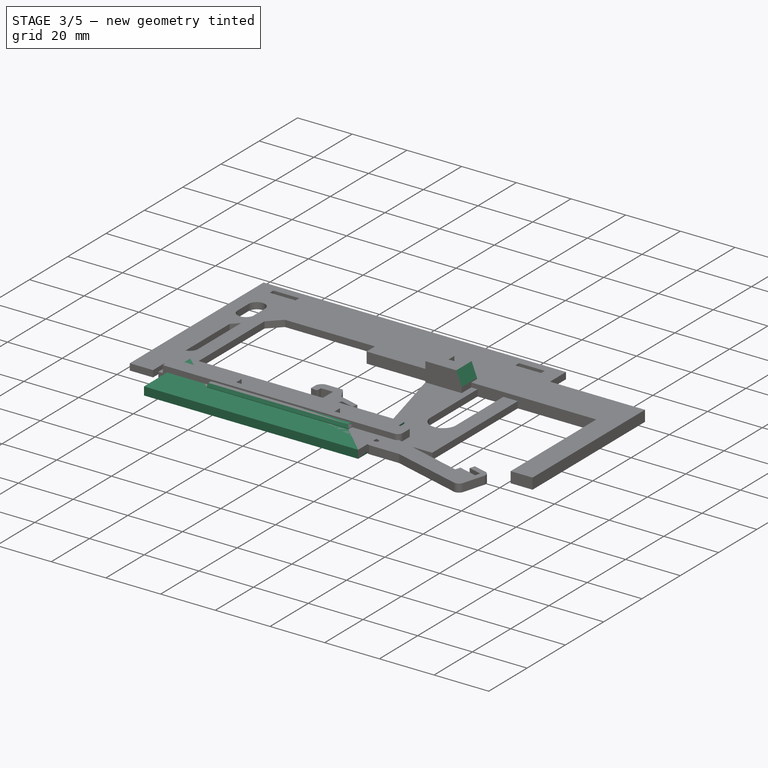
[diagram: stage 3 of 5 — iso view after this stage's code; geometry added in this stage tinted green]
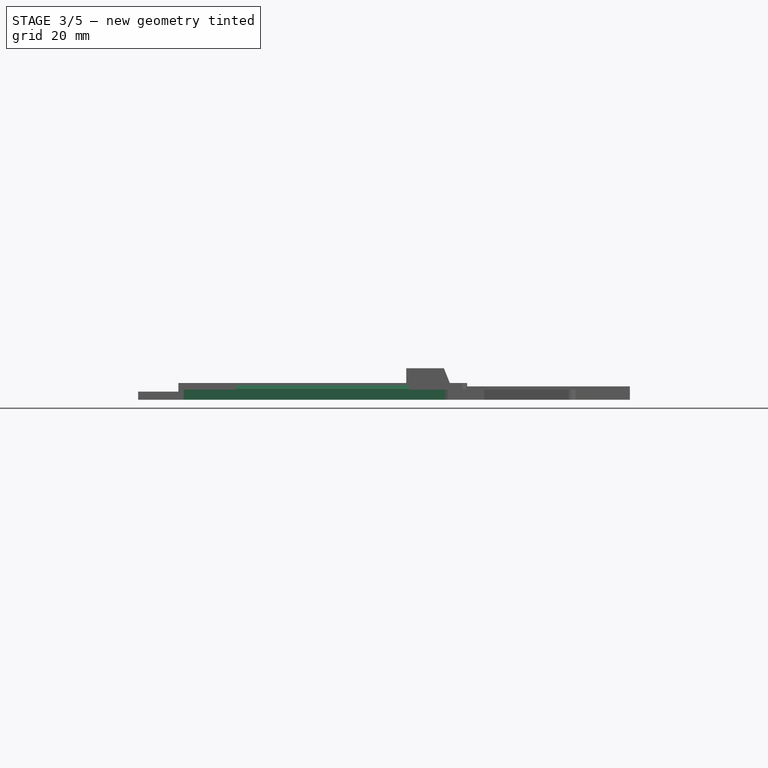
[diagram: stage 3 of 5 — front view after this stage's code; geometry added in this stage tinted green]
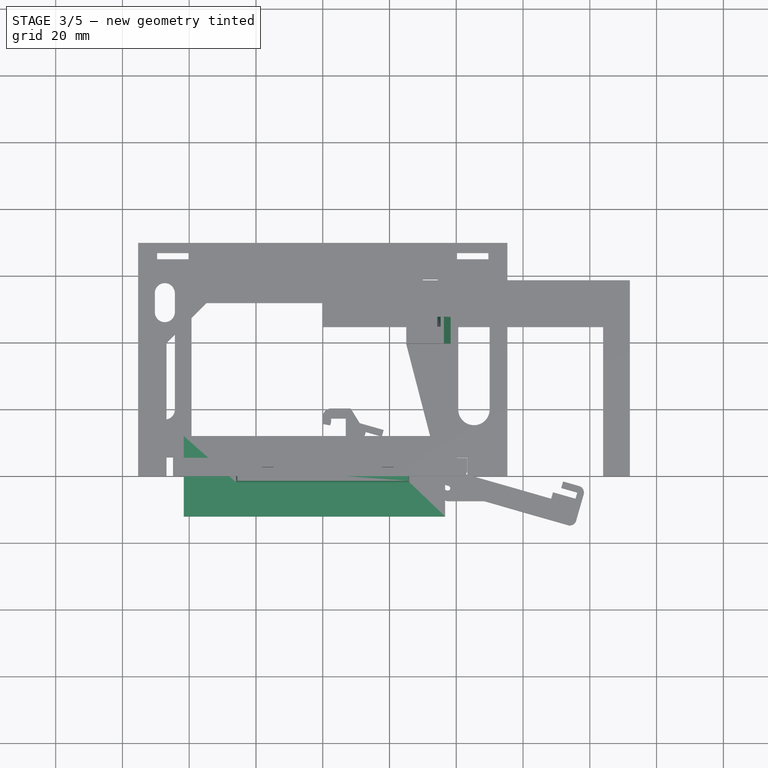
[diagram: stage 3 of 5 — top view after this stage's code; geometry added in this stage tinted green]
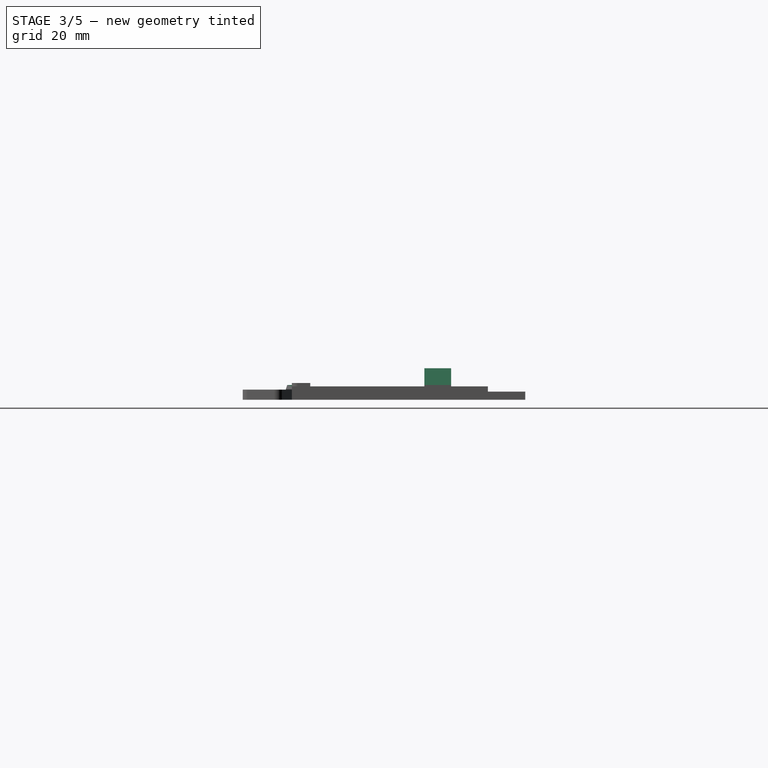
[diagram: stage 3 of 5 — right view after this stage's code; geometry added in this stage tinted green]
FEATURE [PartDesign::Body] Body001  label="Body: mount-bar short A"
  Group = -> [Sketch001,Pad001]
  Origin = -> Origin002
  Placement = pos=(0,0,-80) rot=(0,0,1;0rad)
  Tip = -> Pad001
FEATURE [Sketcher::SketchObject] Sketch002
  FullyConstrained = false
  MapMode = 5
  Support = -> [XY_Plane005]
  expr: Constraints[9] = <<params>>.ph_base_length / 2 + 5
  expr: Constraints[8] = <<params>>.ph_base_length / 2
  expr: Constraints[7] = <<params>>.ph_base_width
  sketch-geometry (4):
    g0: LineSegment StartX=-41.65 StartY=12.05 StartZ=0 EndX=36.65 EndY=12.05 EndZ=0
    g1: LineSegment StartX=36.65 StartY=12.05 StartZ=0 EndX=36.65 EndY=-12.05 EndZ=0
    g2: LineSegment StartX=36.65 StartY=-12.05 StartZ=0 EndX=-41.65 EndY=-12.05 EndZ=0
    g3: LineSegment StartX=-41.65 StartY=-12.05 StartZ=0 EndX=-41.65 EndY=12.05 EndZ=0
  constraints (10):
    c: Coincident(g0,g1)
    c: Coincident(g1,g2)
    c: Coincident(g2,g3)
    c: Coincident(g3,g0)
    c: Horizontal(g2)
    c: Vertical(g1)
    c: Symmetric(g0,g2,g-1)
    c: DistanceY(g3,g3) = 24.1
    c: DistanceX(g-1,g0) = 36.65
    c: DistanceX(g0,g-1) = 41.65
FEATURE [PartDesign::Pad] Pad002  label="Pad: base plate"
  Direction = (1,1,1)
  Length = 3
  Length2 = 100
  Profile = -> Sketch002
  Type = 0
  expr: Length = <<params>>.ph_base_thickness
FEATURE [PartDesign::Plane] DatumPlane  label="DatumPlane: top of base plate"
  Length = 60
  MapMode = 2
  Placement = pos=(0,0,3) rot=(0,0,1;0rad)
  ResizeMode = 0
  Width = 60
  expr: .Placement.Base.z = <<params>>.ph_base_thickness
FEATURE [Sketcher::SketchObject] Sketch003
  FullyConstrained = true
  MapMode = 5
  Placement = pos=(0,0,3) rot=(0,0,1;0rad)
  Support = -> [DatumPlane]
  expr: Constraints[11] = <<params>>.ph_inner_guide_y1
  expr: Constraints[9] = <<params>>.ph_inner_guide_y2
  expr: Constraints[10] = <<params>>.ph_inner_guide_x1
  expr: Constraints[8] = <<params>>.ph_inner_guide_x2
  sketch-geometry (4):
    g0: LineSegment StartX=-25.95 StartY=2.8 StartZ=0 EndX=25.95 EndY=2.8 EndZ=0
    g1: LineSegment StartX=25.95 StartY=2.8 StartZ=0 EndX=25.95 EndY=-1.8 EndZ=0
    g2: LineSegment StartX=25.95 StartY=-1.8 StartZ=0 EndX=-25.95 EndY=-1.8 EndZ=0
    g3: LineSegment StartX=-25.95 StartY=-1.8 StartZ=0 EndX=-25.95 EndY=2.8 EndZ=0
  constraints (12):
    c: Coincident(g0,g1)
    c: Coincident(g1,g2)
    c: Coincident(g2,g3)
    c: Coincident(g3,g0)
    c: Horizontal(g0)
    c: Horizontal(g2)
    c: Vertical(g1)
    c: Vertical(g3)
    c: DistanceX(g0) = -25.95
    c: DistanceY(g0) = 2.8
    c: DistanceX(g1) = 25.95
    c: DistanceY(g1) = -1.8
FEATURE [PartDesign::Pad] Pad003  label="Pad: inner guide"
  BaseFeature = -> Pad002
  Direction = (1,1,1)
  Length = 1.4
  Length2 = 100
  Profile = -> Sketch003
  Type = 0
FEATURE [PartDesign::Chamfer] Chamfer
  Angle = 45
  Base = -> Pad003 [Face11]
  BaseFeature = -> Pad003
  ChamferType = 1
  FlipDirection = false
  Size = 1.2
  Size2 = 0.4
  SupportTransform = false
FEATURE [PartDesign::FeatureBase] BaseFeature
  BaseFeature = -> Fusion
FEATURE [PartDesign::Chamfer] Chamfer004
  Angle = 45
  Base = -> BaseFeature [Edge134]
  BaseFeature = -> BaseFeature
  ChamferType = 1
  FlipDirection = false
  Size = 5
  Size2 = 2
  SupportTransform = false
FEATURE [PartDesign::Chamfer] Chamfer005
  Angle = 45
  Base = -> Chamfer004 [Edge52]
  BaseFeature = -> Chamfer004
  ChamferType = 1
  FlipDirection = false
  Size = 1
  Size2 = 5
  SupportTransform = false
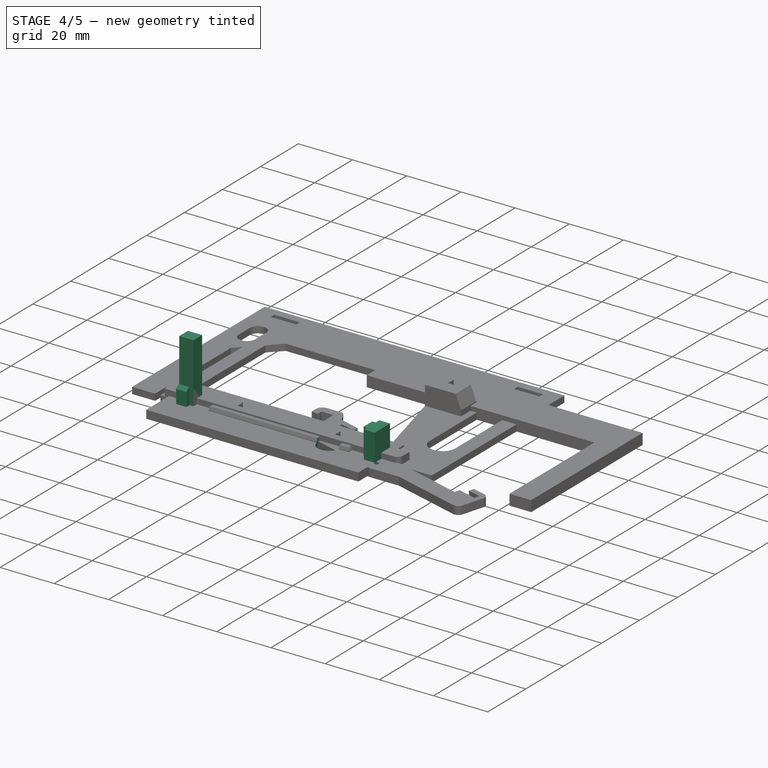
[diagram: stage 4 of 5 — iso view after this stage's code; geometry added in this stage tinted green]
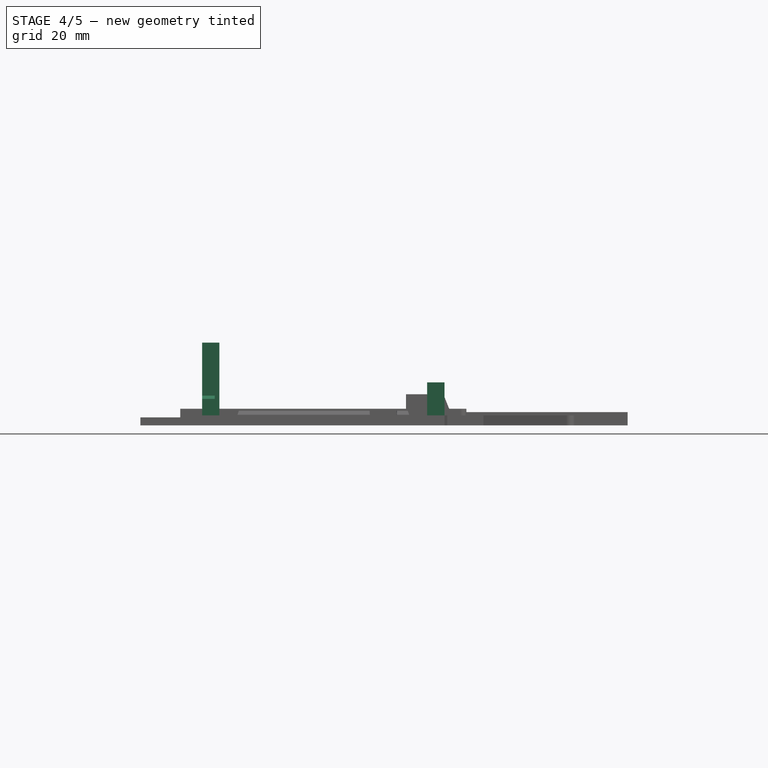
[diagram: stage 4 of 5 — front view after this stage's code; geometry added in this stage tinted green]
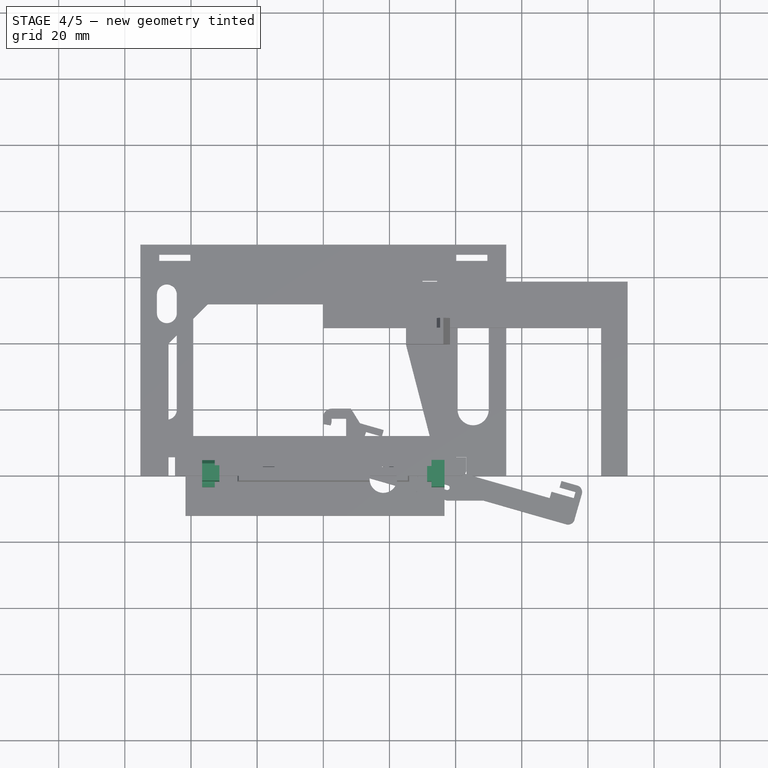
[diagram: stage 4 of 5 — top view after this stage's code; geometry added in this stage tinted green]
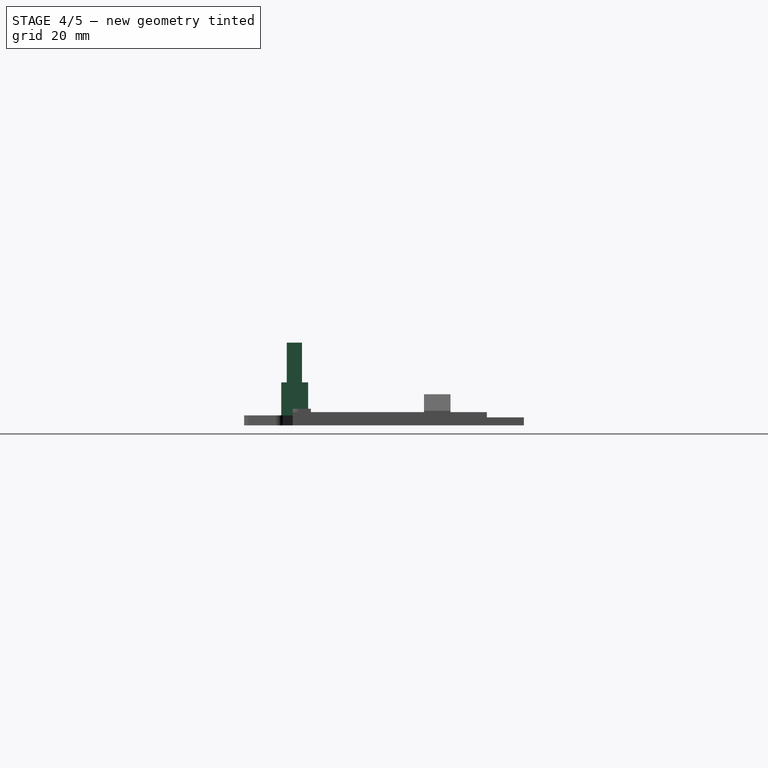
[diagram: stage 4 of 5 — right view after this stage's code; geometry added in this stage tinted green]
FEATURE [Sketcher::SketchObject] Sketch004
  FullyConstrained = true
  MapMode = 5
  Placement = pos=(0,0,3) rot=(0,0,1;0rad)
  Support = -> [DatumPlane]
  expr: Constraints[23] = <<params>>.pi_length / 2 + <<params>>.ph_inner_guide_clearance
  expr: Constraints[21] = <<params>>.pi_thickness + <<params>>.ph_inner_guide_clearance
  expr: Constraints[20] = <<params>>.hub_thickness + <<params>>.ph_inner_guide_clearance
  expr: Constraints[16] = <<params>>.pi_spacer_outer_dist / -2
  expr: Constraints[18] = <<params>>.ph_inner_guide_y1
  expr: Constraints[22] = <<params>>.ph_base_length / 2
  expr: Constraints[17] = <<params>>.ph_inner_guide_y2
  sketch-geometry (8):
    g0: LineSegment StartX=-31.4 StartY=2.8 StartZ=0 EndX=-31.4 EndY=-1.8 EndZ=0
    g1: LineSegment StartX=-31.4 StartY=-1.8 StartZ=0 EndX=-32.8 EndY=-1.8 EndZ=0
    g2: LineSegment StartX=-32.8 StartY=-1.8 StartZ=0 EndX=-32.8 EndY=-3.45 EndZ=0
    g3: LineSegment StartX=-32.8 StartY=-3.45 StartZ=0 EndX=-36.65 EndY=-3.45 EndZ=0
    g4: LineSegment StartX=-36.65 StartY=-3.45 StartZ=0 EndX=-36.65 EndY=4.65 EndZ=0
    g5: LineSegment StartX=-36.65 StartY=4.65 StartZ=0 EndX=-32.8 EndY=4.65 EndZ=0
    g6: LineSegment StartX=-32.8 StartY=4.65 StartZ=0 EndX=-32.8 EndY=2.8 EndZ=0
    g7: LineSegment StartX=-32.8 StartY=2.8 StartZ=0 EndX=-31.4 EndY=2.8 EndZ=0
  constraints (24):
    c: Vertical(g0)
    c: Coincident(g0,g1)
    c: Coincident(g1,g2)
    c: Vertical(g2)
    c: Coincident(g2,g3)
    c: Horizontal(g3)
    c: Coincident(g3,g4)
    c: Vertical(g4)
    c: Coincident(g4,g5)
    c: Coincident(g5,g6)
    c: Vertical(g6)
    c: Coincident(g6,g7)
    c: Coincident(g7,g0)
    c: Horizontal(g7)
    c: Horizontal(g1)
    c: Horizontal(g5)
    c: DistanceX(g0) = -31.4
    c: DistanceY(g0) = 2.8
    c: DistanceY(g0) = -1.8
    c: DistanceX(g6,g1) = 0
    c: DistanceY(g6,g6) = 1.85
    c: DistanceY(g2,g2) = 1.65
    c: DistanceX(g3,g-1) = 36.65
    c: DistanceX(g5,g-1) = 32.8
FEATURE [PartDesign::Pad] Pad004  label="Pad: tall pillar lower section"
  BaseFeature = -> Chamfer
  Direction = (1,1,1)
  Length = 6
  Length2 = 100
  Profile = -> Sketch004
  Type = 0
FEATURE [PartDesign::Plane] DatumPlane001  label="DatumPlane: tall pillar mid section"
  Length = 90.814
  MapMode = 5
  Placement = pos=(0,0,9) rot=(0,0,1;0rad)
  ResizeMode = 0
  Support = -> [Pad004]
  Width = 62.514
FEATURE [Sketcher::SketchObject] Sketch005
  FullyConstrained = true
  MapMode = 5
  Placement = pos=(0,0,9) rot=(0,0,1;0rad)
  Support = -> [DatumPlane001]
  expr: Constraints[10] = <<params>>.ph_base_length / -2
  expr: Constraints[8] = <<params>>.pi_spacer_outer_dist / -2
  expr: Constraints[11] = <<params>>.ph_inner_guide_y1
  expr: Constraints[9] = <<params>>.ph_inner_guide_y2
  sketch-geometry (4):
    g0: LineSegment StartX=-31.4 StartY=2.8 StartZ=0 EndX=-36.65 EndY=2.8 EndZ=0
    g1: LineSegment StartX=-36.65 StartY=2.8 StartZ=0 EndX=-36.65 EndY=-1.8 EndZ=0
    g2: LineSegment StartX=-36.65 StartY=-1.8 StartZ=0 EndX=-31.4 EndY=-1.8 EndZ=0
    g3: LineSegment StartX=-31.4 StartY=-1.8 StartZ=0 EndX=-31.4 EndY=2.8 EndZ=0
  constraints (12):
    c: Coincident(g0,g1)
    c: Coincident(g1,g2)
    c: Coincident(g2,g3)
    c: Coincident(g3,g0)
    c: Horizontal(g0)
    c: Horizontal(g2)
    c: Vertical(g1)
    c: Vertical(g3)
    c: DistanceX(g0) = -31.4
    c: DistanceY(g0) = 2.8
    c: DistanceX(g1) = -36.65
    c: DistanceY(g1) = -1.8
FEATURE [PartDesign::Pad] Pad005  label="Pad: tall pillar top section"
  BaseFeature = -> Pad004
  Direction = (1,1,1)
  Length = 16
  Length2 = 100
  Profile = -> Sketch005
  Type = 0
FEATURE [Sketcher::SketchObject] Sketch006
  FullyConstrained = true
  MapMode = 5
  Placement = pos=(0,0,3) rot=(0,0,1;0rad)
  Support = -> [DatumPlane]
  expr: Constraints[23] = <<params>>.pi_thickness + <<params>>.ph_inner_guide_clearance
  expr: Constraints[21] = <<params>>.ph_base_length / 2
  expr: Constraints[20] = <<params>>.pi_length / 2 + 0.05
  expr: Constraints[18] = <<params>>.ph_inner_guide_y1
  expr: Constraints[22] = <<params>>.hub_thickness + <<params>>.ph_inner_guide_clearance
  expr: Constraints[17] = <<params>>.ph_inner_guide_y2
  expr: Constraints[16] = <<params>>.pi_spacer_outer_dist / 2
  sketch-geometry (8):
    g0: LineSegment StartX=31.4 StartY=2.8 StartZ=0 EndX=31.4 EndY=-1.8 EndZ=0
    g1: LineSegment StartX=31.4 StartY=-1.8 StartZ=0 EndX=32.7 EndY=-1.8 EndZ=0
    g2: LineSegment StartX=32.7 StartY=-1.8 StartZ=0 EndX=32.7 EndY=-3.45 EndZ=0
    g3: LineSegment StartX=32.7 StartY=-3.45 StartZ=0 EndX=36.65 EndY=-3.45 EndZ=0
    g4: LineSegment StartX=36.65 StartY=-3.45 StartZ=0 EndX=36.65 EndY=4.65 EndZ=0
    g5: LineSegment StartX=36.65 StartY=4.65 StartZ=0 EndX=32.7 EndY=4.65 EndZ=0
    g6: LineSegment StartX=32.7 StartY=4.65 StartZ=0 EndX=32.7 EndY=2.8 EndZ=0
    g7: LineSegment StartX=32.7 StartY=2.8 StartZ=0 EndX=31.4 EndY=2.8 EndZ=0
  constraints (24):
    c: Vertical(g0)
    c: Coincident(g0,g1)
    c: Horizontal(g1)
    c: Coincident(g1,g2)
    c: Vertical(g2)
    c: Coincident(g2,g3)
    c: Horizontal(g3)
    c: Coincident(g3,g4)
    c: Vertical(g4)
    c: Coincident(g4,g5)
    c: Horizontal(g5)
    c: Coincident(g5,g6)
    c: Vertical(g6)
    c: Coincident(g6,g7)
    c: Coincident(g7,g0)
    c: Horizontal(g7)
    c: DistanceX(g0) = 31.4
    c: DistanceY(g0) = 2.8
    c: DistanceY(g0) = -1.8
    c: DistanceX(g1,g6) = 0
    c: DistanceX(g-1,g1) = 32.7
    c: DistanceX(g-1,g4) = 36.65
    c: DistanceY(g6,g6) = 1.85
    c: DistanceY(g2,g2) = 1.65
FEATURE [PartDesign::Pad] Pad006  label="Pad: short pillar"
  BaseFeature = -> Pad005
  Direction = (1,1,1)
  Length = 10
  Length2 = 100
  Profile = -> Sketch006
  Type = 0
FEATURE [Sketcher::SketchObject] Sketch007
  FullyConstrained = true
  MapMode = 5
  Support = -> [XY_Plane005]
  expr: Constraints[1] = <<params>>.ph_base_length / 2 - <<params>>.case_spacer_x2_wall_dist
  expr: Constraints[0] = <<params>>.case_spacer2_dia + 0.8
  sketch-geometry (1):
    g0: Circle CenterX=18.15 CenterY=-1 CenterZ=0 NormalX=0 NormalY=0 NormalZ=1 AngleXU=0 Radius=4.15
  constraints (3):
    c: Diameter(g0) = 8.3
    c: DistanceX(g-1,g0) = 18.15
    c: DistanceY(g0,g-1) = 1
FEATURE [PartDesign::Pocket] Pocket
  BaseFeature = -> Pad006
  Length = 5
  Length2 = 100
  Profile = -> Sketch007
  Reversed = true
  Type = 0
FEATURE [PartDesign::Chamfer] Chamfer001
  Angle = 45
  Base = -> Pocket [Edge92,Edge94]
  BaseFeature = -> Pocket
  ChamferType = 0
  FlipDirection = false
  Size = 1
  Size2 = 1
  SupportTransform = false
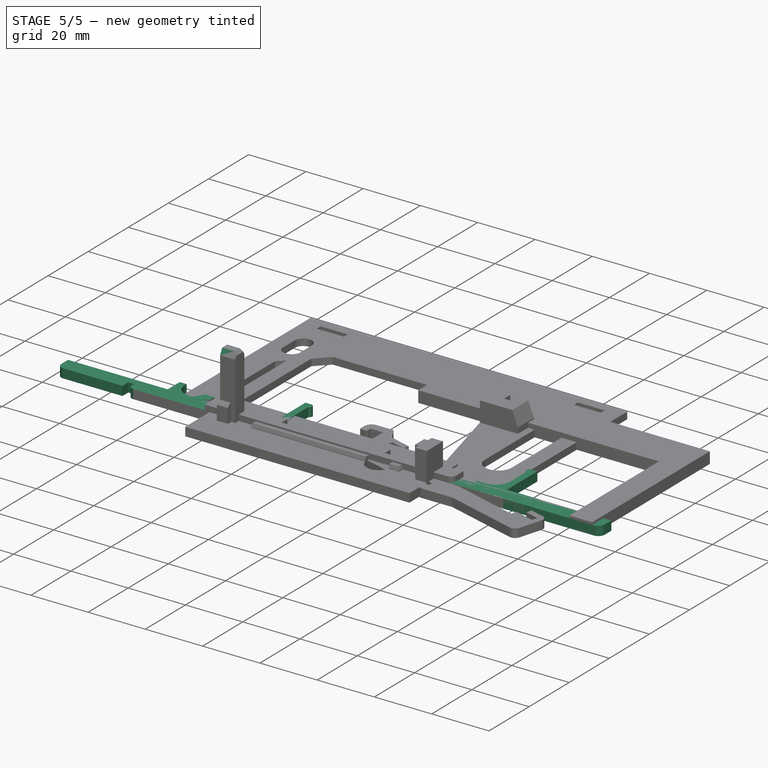
[diagram: stage 5 of 5 — iso view after this stage's code; geometry added in this stage tinted green]
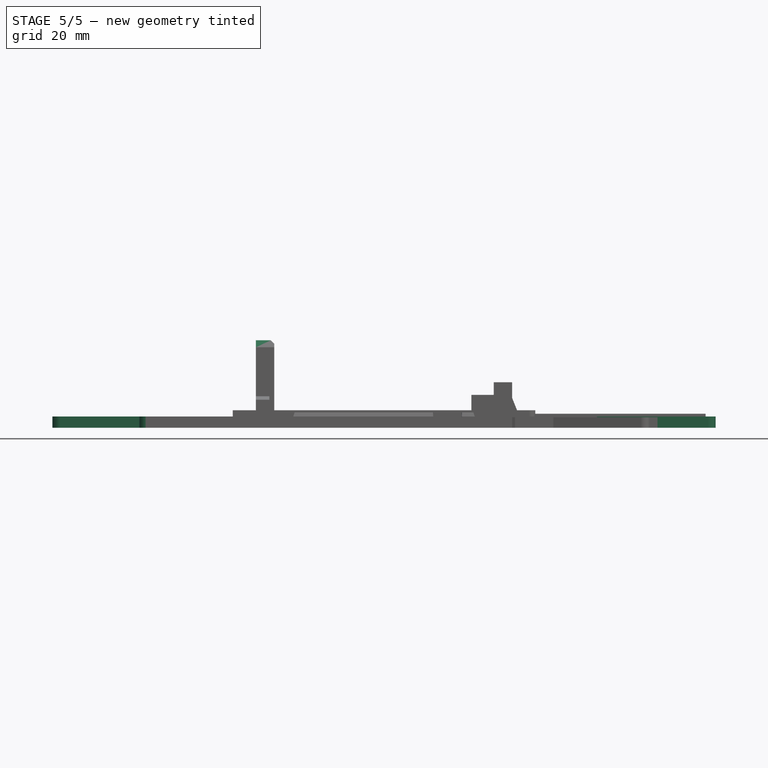
[diagram: stage 5 of 5 — front view after this stage's code; geometry added in this stage tinted green]
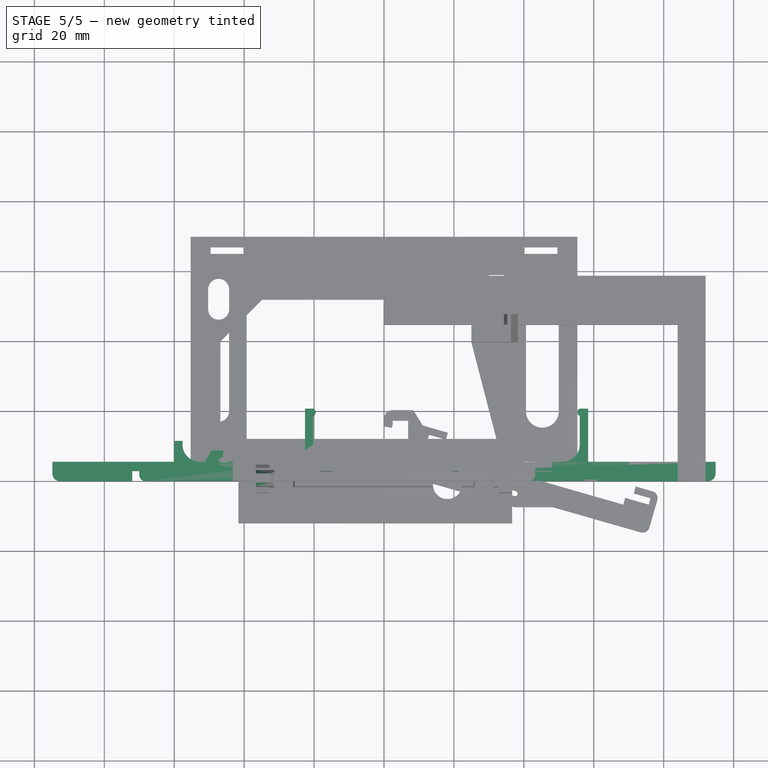
[diagram: stage 5 of 5 — top view after this stage's code; geometry added in this stage tinted green]
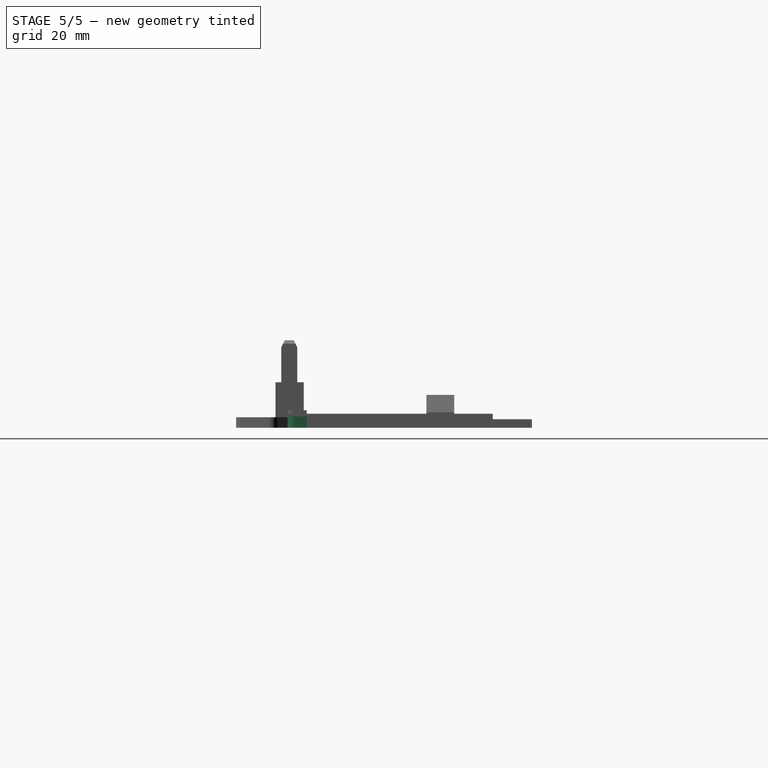
[diagram: stage 5 of 5 — right view after this stage's code; geometry added in this stage tinted green]
FEATURE [Spreadsheet::Sheet] Spreadsheet  label="params"
  cells = A3=case dimensions; A4=case_length; B4(case_length)=189.7; D4=Note, that the case is slightly conic, smaller at the bottom; A5=case_width; B5(case_width)=140; A6=case_height; B6(case_height)=0; A7=case_corner_inset; B7(case_corner_inset)=14; A8=case_nob_height; B8(case_nob_height)=5.5; A9=case_spacer_height; B9(case_spacer_height)=7; A10=case_spacer2_dia; B10(case_spacer2_dia)=7.5; D10=diameter of the smaller spacers; A11=case_spacer_x2_wall_dist; B11(case_spacer_x2_wall_dist)=18.5; D11=distance of spacer 2 to the inside of the wall; A13=battery dimensions; A14=bat_length; B14(bat_length)=153; A15=bat_width; B15(bat_width)=76; A16=bat_height; B16(bat_height)=19; A18=battery mount; A19=bm_length; B19(bm_length)==case_length; A20=bm_width; B20(bm_width)==case_width; A21=bm_lift; B21(bm_lift)==case_nob_height; A22=bm_height; B22(bm_height)==bm_lift + 6; A23=bm_thickness; B23(bm_thickness)=3.2; A24=bm_brace_height; B24(bm_brace_height)=15.2; A25=bm_bar_clearance_x; B25(bm_bar_clearance_x)=0.25; A26=bm_bar_clearance_height; B26(bm_bar_clearance_height)=0.15; A28=display dimensions; A29=dp_length; B29(dp_length)=98.59999999999999; A30=dp_width; B30(dp_width)=58; D30=not including the protruding mount points; A31=dp_mount_width; B31(dp_mount_width)=9; A32=dp_mount_length; B32(dp_mount_length)=10; A33=dp_pcb_thickness; B33(dp_pcb_thickness)=1.6; A35=display mount; A36=dm_mount_height; B36(dm_mount_height)=65; A37=dm_mount_dist; B37(dm_mount_dist)==dp_length - 2 * dp_mount_width; A38=dm_mount_clearence_x; B38(dm_mount_clearence_x)=0.4; A39=dm_mount_clearance_y; B39(dm_mount_clearance_y)=0.3; A40=dm_mount_thickness; B40(dm_mount_thickness)=2.4; A41=dm_top_dist; B41(dm_top_dist)=3; D41=how much space above the display mounts we protrude; A42=dm_cross_bar_x1; B42(dm_cross_bar_x1)=30; A43=dm_cross_bar_x2; B43(dm_cross_bar_x2)==dm_cross_bar_x1 + dm_cross_bar_width + dm_cross_bar_clearance_x; A44=dm_cross_bar_y1; B44(dm_cross_bar_y1)=44.7; A45=dm_cross_bar_y2; B45(dm_cross_bar_y2)==dm_cross_bar_y1 + dm_cross_bar_height + dm_cross_bar_clearance_y; A46=dm_cross_bar_width; B46(dm_cross_bar_width)=4; A47=dm_cross_bar_height; B47(dm_cross_bar_height)=14; A48=dm_cross_bar_clearance_x; B48(dm_cross_bar_clearance_x)=0.4; A49=dm_cross_bar_clearance_y; B49(dm_cross_bar_clearance_y)=0.3; A50=dm_foot_mount_dist; B50(dm_foot_mount_dist)=84.7; A51=dm_foot_mount_width; B51(dm_foot_mount_width)=5; A53=pi zero & hub assembly dimensions; A54=pi_length; B54(pi_length)=65.3; A55=pi_spacer_outer_dist; B55(pi_spacer_outer_dist)=62.8; D55=distance from mount space to spacer, outter dist; A56=pi_thickness; B56(pi_thickness)=1.5; A57=hub_thickness; B57(hub_thickness)=1.7; A58=pi_hub_dist; B58(pi_hub_dist)=4.9; D58=distance between the two pcb, including the pcbs; A59=pi_hub_outer_dist; B59(pi_hub_outer_dist)=8.1; A60=hub_addon_height; B60(hub_addon_height)=8; A61=pi_spacer_outer_dia; B61(pi_spacer_outer_dia)=5.2; D61=outer diameter of the heaxagonal spacer; A62=pi_spacer_inner_dia; B62(pi_spacer_inner_dia)=4.85; A64=pi & hub mount dimensions; A65=ph_base_length; B65(ph_base_length)==pi_length + 2 * ph_outer_padding; A66=ph_base_width; B66(ph_base_width)==pi_hub_outer_dist + hub_addon_height + 2 * ph_outer_padding; A67=ph_base_thickness; B67(ph_base_thickness)=3; A68=ph_outer_padding; B68(ph_outer_padding)=4; A69=ph_inner_guide_x1; B69(ph_inner_guide_x1)==ph_base_length / 2 - ph_outer_padding - 6.7; A70=ph_inner_guide_x2; B70(ph_inner_guide_x2)==ph_inner_guide_x1 * -1; A71=ph_inner_guide_y1; B71(ph_inner_guide_y1)==0.5 * ph_base_width - ph_outer_padding - hub_addon_height - hub_thickness - ph_inner_guide_clearance; A72=ph_inner_guide_y2; B72(ph_inner_guide_y2)==ph_inner_guide_y1 + pi_hub_dist - 2 * ph_inner_guide_clearance; A73=ph_inner_guide_clearance; B73(ph_inner_guide_clearance)=0.15; A75=sim hat dimensions; A76=si_length; B76(si_length)=65.5; A77=si_width; B77(si_width)=56; A78=si_pcb_height; B78(si_pcb_height)=1.65; A81=sim hat mount dimensions; A82=sm_clamp_angle; B82(sm_clamp_angle)=15; A83=sm_clamp_open_angle; B83(sm_clamp_open_angle)=80; A84=sm_clamp_teeth_height; B84(sm_clamp_teeth_height)=2; A85=sm_pcb_clearance_x; B85(sm_pcb_clearance_x)=0.4; A86=sm_pcb_clearence_y; B86(sm_pcb_clearence_y)=0.3; A87=sm_thickness; B87(sm_thickness)=3; A88=sm_pcb_angle; B88(sm_pcb_angle)=16
FEATURE [Sketcher::SketchObject] Sketch001
  FullyConstrained = true
  MapMode = 5
  Support = -> [XY_Plane002]
  expr: Constraints[56] = <<params>>.bm_thickness + 0.3
  expr: Constraints[16] = <<params>>.bm_width
  expr: Constraints[40] = 0.5 * <<params>>.bm_lift + 0.1
  expr: Constraints[32] = <<params>>.case_corner_inset
  expr: Constraints[57] = <<params>>.bm_thickness + 0.3
  expr: Constraints[30] = <<params>>.bm_brace_height
  expr: Constraints[28] = <<params>>.bat_width + 0.2
  expr: Constraints[15] = <<params>>.bm_lift
  sketch-geometry (26):
    g0: LineSegment StartX=-68.2 StartY=0 StartZ=0 EndX=68.2 EndY=0 EndZ=0
    g1: LineSegment StartX=70 StartY=1.8 StartZ=0 EndX=70 EndY=5.5 EndZ=0
    g2: LineSegment StartX=70 StartY=5.5 StartZ=0 EndX=58.4 EndY=5.5 EndZ=0
    g3: LineSegment StartX=58.4 StartY=5.5 StartZ=0 EndX=58.4 EndY=20.7 EndZ=0
    g4: LineSegment StartX=58.4 StartY=20.7 StartZ=0 EndX=56 EndY=20.7 EndZ=0
    g5: LineSegment StartX=-20.2 StartY=20.7 StartZ=0 EndX=-22.6 EndY=20.7 EndZ=0
    g6: LineSegment StartX=-22.6 StartY=20.7 StartZ=0 EndX=-22.6 EndY=5.5 EndZ=0
    g7: LineSegment StartX=-22.6 StartY=5.5 StartZ=0 EndX=-70 EndY=5.5 EndZ=0
    g8: LineSegment StartX=-70 StartY=5.5 StartZ=0 EndX=-70 EndY=1.8 EndZ=0
    g9: ArcOfCircle CenterX=-15.2 CenterY=10.5 CenterZ=0 NormalX=0 NormalY=0 NormalZ=1 AngleXU=0 Radius=5 StartAngle=3.14159 EndAngle=4.71239
    g10: ArcOfCircle CenterX=68.2 CenterY=1.8 CenterZ=0 NormalX=0 NormalY=0 NormalZ=1 AngleXU=0 Radius=1.8 StartAngle=4.71239 EndAngle=6.28319
    g11: ArcOfCircle CenterX=-68.2 CenterY=1.8 CenterZ=0 NormalX=0 NormalY=0 NormalZ=1 AngleXU=0 Radius=1.8 StartAngle=3.14159 EndAngle=4.71239
    g12: ArcOfCircle CenterX=51 CenterY=10.5 CenterZ=0 NormalX=0 NormalY=0 NormalZ=1 AngleXU=0 Radius=5 StartAngle=4.71239 EndAngle=6.28319
    g13: LineSegment StartX=51 StartY=5.5 StartZ=0 EndX=48 EndY=5.5 EndZ=0
    g14: LineSegment StartX=48 StartY=5.5 StartZ=0 EndX=48 EndY=2.65 EndZ=0
    g15: LineSegment StartX=48 StartY=2.65 StartZ=0 EndX=44.5 EndY=2.65 EndZ=0
    g16: LineSegment StartX=44.5 StartY=2.65 StartZ=0 EndX=44.5 EndY=5.5 EndZ=0
    g17: LineSegment StartX=-15.2 StartY=5.5 StartZ=0 EndX=8.5 EndY=5.5 EndZ=0
    g18: LineSegment StartX=8.5 StartY=5.5 StartZ=0 EndX=8.5 EndY=2.65 EndZ=0
    g19: LineSegment StartX=8.5 StartY=2.65 StartZ=0 EndX=12 EndY=2.65 EndZ=0
    g20: LineSegment StartX=12 StartY=2.65 StartZ=0 EndX=12 EndY=5.5 EndZ=0
    g21: LineSegment StartX=12 StartY=5.5 StartZ=0 EndX=44.5 EndY=5.5 EndZ=0
    g22: LineSegment StartX=56 StartY=10.5 StartZ=0 EndX=56 EndY=18.7 EndZ=0
    g23: ArcOfCircle CenterX=56.4 CenterY=19.7 CenterZ=0 NormalX=0 NormalY=0 NormalZ=1 AngleXU=0 Radius=1.07703 StartAngle=1.9513 EndAngle=4.33188
    g24: LineSegment StartX=-20.2 StartY=10.5 StartZ=0 EndX=-20.2 EndY=18.7 EndZ=0
    g25: ArcOfCircle CenterX=-20.6 CenterY=19.7 CenterZ=0 NormalX=0 NormalY=0 NormalZ=1 AngleXU=0 Radius=1.07703 StartAngle=5.0929 EndAngle=7.47348
  constraints (76):
    c: Vertical(g1)
    c: Coincident(g1,g2)
    c: Horizontal(g2)
    c: Coincident(g2,g3)
    c: Vertical(g3)
    c: Coincident(g3,g4)
    c: Horizontal(g4)
    c: Horizontal(g5)
    c: Coincident(g5,g6)
    c: Vertical(g6)
    c: Coincident(g6,g7)
    c: Horizontal(g7)
    c: Coincident(g7,g8)
    c: Vertical(g8)
    c: Symmetric(g7,g1,g-2)
    c: DistanceY(g-1,g7) = 5.5
    c: DistanceX(g7,g1) = 140
    c: DistanceX(g4,g4) = 2.4
    c: DistanceX(g5,g5) = 2.4
    c: Radius(g9) = 5
    c: Tangent(g1,g10) = -1.5708
    c: Tangent(g0,g10) = -1.5708
    c: Tangent(g8,g11) = -1.5708
    c: Tangent(g0,g11) = -1.5708
    c: Radius(g11) = 1.8
    c: Radius(g10) = 1.8
    c: DistanceY(g-1,g0) = 0
    c: Horizontal(g0)
    c: DistanceX(g5,g4) = 76.2
    c: Radius(g12) = 5
    c: DistanceY(g3,g3) = 15.2
    c: DistanceY(g5,g4) = 0
    c: DistanceX(g4,g1) = 14
    c: Tangent(g12,g13) = 1.5708
    c: Coincident(g13,g14)
    c: Coincident(g14,g15)
    c: Horizontal(g15)
    c: Coincident(g15,g16)
    c: DistanceX(g13,g1) = 22
    c: Vertical(g14)
    c: DistanceY(g14,g14) = 2.85
    c: Tangent(g9,g17) = -1.5708
    c: Coincident(g17,g18)
    c: Vertical(g18)
    c: Coincident(g18,g19)
    c: Horizontal(g19)
    c: Coincident(g19,g20)
    c: Vertical(g20)
    c: Coincident(g20,g21)
    c: Coincident(g21,g16)
    c: Horizontal(g21)
    c: Vertical(g16)
    c: DistanceY(g19,g15) = 0
    c: Horizontal(g13)
    c: DistanceY(g12,g2) = 0
    c: DistanceX(g20,g1) = 58
    c: DistanceX(g15,g15) = 3.5
    c: DistanceX(g19,g19) = 3.5
    c: DistanceY(g13,g16) = 0
    c: DistanceY(g20,g17) = 0
    c: Horizontal(g17)
    c: Tangent(g12,g22) = -1.5708
    c: DistanceX(g22,g4) = 0
    c: Coincident(g23,g22)
    c: Coincident(g23,g4)
    c: Vertical(g22)
    c: DistanceY(g22,g4) = 2
    c: DistanceX(g4,g23) = 0.4
    c: Tangent(g9,g24) = 1.5708
    c: DistanceX(g5,g9) = 0
    c: Vertical(g24)
    c: Coincident(g25,g24)
    c: Coincident(g25,g5)
    c: DistanceY(g24,g22) = 0
    c: DistanceX(g25,g5) = 0.4
    c: DistanceY(g2,g22) = 13.2
FEATURE [PartDesign::Pad] Pad001
  Direction = (1,1,1)
  Length = 3.2
  Length2 = 100
  Profile = -> Sketch001
  Type = 0
  expr: Length = <<params>>.bm_thickness
FEATURE [Sketcher::SketchObject] Sketch010
  FullyConstrained = true
  MapMode = 5
  Support = -> [XY_Plane006]
  expr: Constraints[83] = <<params>>.ph_base_width + 0.5
  expr: Constraints[35] = 0.5 * <<params>>.bm_lift + 0.1
  expr: Constraints[10] = <<params>>.bm_lift
  expr: Constraints[52] = <<params>>.bm_thickness + 0.3
  expr: Constraints[23] = <<params>>.bat_width + 0.2
  expr: Constraints[84] = <<params>>.ph_base_thickness + 0.35
  expr: Constraints[51] = <<params>>.bm_thickness + 0.3
  expr: Constraints[25] = <<params>>.bm_brace_height
  expr: Constraints[27] = <<params>>.case_corner_inset
  expr: Constraints[11] = <<params>>.bm_width
  sketch-geometry (36):
    g0: LineSegment StartX=-68.2 StartY=0 StartZ=0 EndX=68.2 EndY=0 EndZ=0
    g1: LineSegment StartX=70 StartY=1.8 StartZ=0 EndX=70 EndY=5.5 EndZ=0
    g2: LineSegment StartX=70 StartY=5.5 StartZ=0 EndX=58.4 EndY=5.5 EndZ=0
    g3: LineSegment StartX=58.4 StartY=5.5 StartZ=0 EndX=58.4 EndY=20.7 EndZ=0
    g4: LineSegment StartX=58.4 StartY=20.7 StartZ=0 EndX=56 EndY=20.7 EndZ=0
    g5: LineSegment StartX=-20.2 StartY=20.7 StartZ=0 EndX=-22.6 EndY=20.7 EndZ=0
    g6: LineSegment StartX=-70 StartY=5.5 StartZ=0 EndX=-70 EndY=1.8 EndZ=0
    g7: ArcOfCircle CenterX=-15.2 CenterY=10.5 CenterZ=0 NormalX=0 NormalY=0 NormalZ=1 AngleXU=0 Radius=5 StartAngle=3.14159 EndAngle=4.71239
    g8: ArcOfCircle CenterX=68.2 CenterY=1.8 CenterZ=0 NormalX=0 NormalY=0 NormalZ=1 AngleXU=0 Radius=1.8 StartAngle=4.71239 EndAngle=6.28319
    g9: ArcOfCircle CenterX=-68.2 CenterY=1.8 CenterZ=0 NormalX=0 NormalY=0 NormalZ=1 AngleXU=0 Radius=1.8 StartAngle=3.14159 EndAngle=4.71239
    g10: ArcOfCircle CenterX=51 CenterY=10.5 CenterZ=0 NormalX=0 NormalY=0 NormalZ=1 AngleXU=0 Radius=5 StartAngle=4.71239 EndAngle=6.28319
    g11: LineSegment StartX=51 StartY=5.5 StartZ=0 EndX=48 EndY=5.5 EndZ=0
    g12: LineSegment StartX=48 StartY=5.5 StartZ=0 EndX=48 EndY=2.65 EndZ=0
    g13: LineSegment StartX=48 StartY=2.65 StartZ=0 EndX=44.5 EndY=2.65 EndZ=0
    g14: LineSegment StartX=44.5 StartY=2.65 StartZ=0 EndX=44.5 EndY=5.5 EndZ=0
    g15: LineSegment StartX=-15.2 StartY=5.5 StartZ=0 EndX=8.5 EndY=5.5 EndZ=0
    g16: LineSegment StartX=8.5 StartY=5.5 StartZ=0 EndX=8.5 EndY=2.65 EndZ=0
    g17: LineSegment StartX=8.5 StartY=2.65 StartZ=0 EndX=12 EndY=2.65 EndZ=0
    g18: LineSegment StartX=12 StartY=2.65 StartZ=0 EndX=12 EndY=5.5 EndZ=0
    g19: LineSegment StartX=12 StartY=5.5 StartZ=0 EndX=44.5 EndY=5.5 EndZ=0
    g20: LineSegment StartX=56 StartY=10.5 StartZ=0 EndX=56 EndY=18.7 EndZ=0
    g21: ArcOfCircle CenterX=56.4 CenterY=19.7 CenterZ=0 NormalX=0 NormalY=0 NormalZ=1 AngleXU=0 Radius=1.07703 StartAngle=1.9513 EndAngle=4.33188
    g22: LineSegment StartX=-20.2 StartY=10.5 StartZ=0 EndX=-20.2 EndY=18.7 EndZ=0
    g23: ArcOfCircle CenterX=-20.6 CenterY=19.7 CenterZ=0 NormalX=0 NormalY=0 NormalZ=1 AngleXU=0 Radius=1.07703 StartAngle=5.0929 EndAngle=7.47348
    g24: LineSegment StartX=-22.6 StartY=3 StartZ=0 EndX=-47.2 EndY=3 EndZ=0
    g25: LineSegment StartX=-47.2 StartY=3 StartZ=0 EndX=-47.2 EndY=6.35 EndZ=0
    g26: LineSegment StartX=-47.2 StartY=6.35 StartZ=0 EndX=-46 EndY=6.90957 EndZ=0
    g27: LineSegment StartX=-46 StartY=6.90957 StartZ=0 EndX=-46 EndY=8.75 EndZ=0
    g28: LineSegment StartX=-46 StartY=8.75 StartZ=0 EndX=-49.3236 EndY=8.75 EndZ=0
    g29: LineSegment StartX=-49.3236 StartY=8.75 StartZ=0 EndX=-51.2 EndY=5.5 EndZ=0
    g30: LineSegment StartX=-51.2 StartY=5.5 StartZ=0 EndX=-70 EndY=5.5 EndZ=0
    g31: LineSegment StartX=-22.6 StartY=3 StartZ=0 EndX=-22.6 EndY=6.35 EndZ=0
    g32: LineSegment StartX=-22.6 StartY=6.35 StartZ=0 EndX=-23.8 EndY=6.90957 EndZ=0
    g33: LineSegment StartX=-23.8 StartY=6.90957 StartZ=0 EndX=-23.8 EndY=8.75 EndZ=0
    g34: LineSegment StartX=-23.8 StartY=8.75 StartZ=0 EndX=-22.6 EndY=8.75 EndZ=0
    g35: LineSegment StartX=-22.6 StartY=8.75 StartZ=0 EndX=-22.6 EndY=20.7 EndZ=0
  constraints (106):
    c: Vertical(g1)
    c: Coincident(g1,g2)
    c: Horizontal(g2)
    c: Coincident(g2,g3)
    c: Vertical(g3)
    c: Coincident(g3,g4)
    c: Horizontal(g4)
    c: Horizontal(g5)
    c: Vertical(g6)
    c: Symmetric(g6,g1,g-2)
    c: DistanceY(g-1,g6) = 5.5
    c: DistanceX(g6,g1) = 140
    c: DistanceX(g4,g4) = 2.4
    c: DistanceX(g5,g5) = 2.4
    c: Radius(g7) = 5
    c: Tangent(g1,g8) = -1.5708
    c: Tangent(g0,g8) = -1.5708
    c: Tangent(g6,g9) = -1.5708
    c: Tangent(g0,g9) = -1.5708
    c: Radius(g9) = 1.8
    c: Radius(g8) = 1.8
    c: DistanceY(g-1,g0) = 0
    c: Horizontal(g0)
    c: DistanceX(g5,g4) = 76.2
    c: Radius(g10) = 5
    c: DistanceY(g3,g3) = 15.2
    c: DistanceY(g5,g4) = 0
    c: DistanceX(g4,g1) = 14
    c: Tangent(g10,g11) = 1.5708
    c: Coincident(g11,g12)
    c: Coincident(g12,g13)
    c: Horizontal(g13)
    c: Coincident(g13,g14)
    c: DistanceX(g11,g1) = 22
    c: Vertical(g12)
    c: DistanceY(g12,g12) = 2.85
    c: Tangent(g7,g15) = -1.5708
    c: Coincident(g15,g16)
    c: Vertical(g16)
    c: Coincident(g16,g17)
    c: Horizontal(g17)
    c: Coincident(g17,g18)
    c: Vertical(g18)
    c: Coincident(g18,g19)
    c: Coincident(g19,g14)
    c: Horizontal(g19)
    c: Vertical(g14)
    c: DistanceY(g17,g13) = 0
    c: Horizontal(g11)
    c: DistanceY(g10,g2) = 0
    c: DistanceX(g18,g1) = 58
    c: DistanceX(g13,g13) = 3.5
    c: DistanceX(g17,g17) = 3.5
    c: DistanceY(g11,g14) = 0
    c: DistanceY(g18,g15) = 0
    c: Horizontal(g15)
    c: Tangent(g10,g20) = -1.5708
    c: DistanceX(g20,g4) = 0
    c: Coincident(g21,g20)
    c: Coincident(g21,g4)
    c: Vertical(g20)
    c: DistanceY(g20,g4) = 2
    c: DistanceX(g4,g21) = 0.4
    c: Tangent(g7,g22) = 1.5708
    c: DistanceX(g5,g7) = 0
    c: Vertical(g22)
    c: Coincident(g23,g22)
    c: Coincident(g23,g5)
    c: DistanceY(g22,g20) = 0
    c: DistanceX(g23,g5) = 0.4
    c: DistanceY(g2,g20) = 13.2
    c: DistanceY(g-1,g24) = 3
    c: Horizontal(g24)
    c: Coincident(g24,g25)
    c: Vertical(g25)
    c: Coincident(g25,g26)
    c: Coincident(g26,g27)
    c: Coincident(g27,g28)
    c: Horizontal(g28)
    c: Coincident(g28,g29)
    c: Coincident(g29,g30)
    c: Coincident(g30,g6)
    c: Horizontal(g30)
    c: DistanceX(g24,g24) = 24.6
    c: DistanceY(g25,g25) = 3.35
    c: Vertical(g27)
    c: DistanceX(g29,g25) = 4
    c: DistanceY(g25,g27) = 2.4
    c: Angle(g29,g30) = 2.0944
    c: DistanceX(g25,g26) = 1.2
    c: Angle(g25,g26) = 2.00713
    c: Coincident(g24,g31)
    c: Vertical(g31)
    c: Coincident(g31,g32)
    c: Coincident(g32,g33)
    c: Vertical(g33)
    c: Coincident(g33,g34)
    c: Horizontal(g34)
    c: Coincident(g34,g35)
    c: Coincident(g35,g5)
    c: Vertical(g35)
    c: DistanceX(g34,g31) = 0
    c: Angle(g32,g31) = 2.00713
    c: DistanceX(g32,g31) = 1.2
    c: DistanceY(g25,g31) = 0
    c: DistanceY(g33,g27) = 0
FEATURE [PartDesign::Pad] Pad
  Direction = (1,1,1)
  Length = 3.2
  Length2 = 100
  Profile = -> Sketch010
  Type = 0
  expr: Length = <<params>>.bm_thickness
FEATURE [PartDesign::Body] Body003  label="Body: mount-bar short B"
  Group = -> [Sketch010,Pad]
  Origin = -> Origin006
  Placement = pos=(0,0,-90) rot=(0,0,1;0rad)
  Tip = -> Pad
FEATURE [Sketcher::SketchObject] Sketch
  FullyConstrained = true
  MapMode = 5
  Support = -> [XY_Plane001]
  expr: Constraints[57] = <<params>>.bm_thickness + <<params>>.bm_bar_clearance_x
  expr: Constraints[72] = <<params>>.dm_foot_mount_dist
  expr: Constraints[45] = <<params>>.bm_height
  expr: Constraints[33] = <<params>>.bm_thickness + <<params>>.bm_bar_clearance_x
  expr: Constraints[37] = 0.5 * <<params>>.bm_lift + <<params>>.bm_bar_clearance_height
  expr: Constraints[31] = <<params>>.bat_length - 0.5
  expr: Constraints[12] = <<params>>.bm_length
  expr: Constraints[44] = <<params>>.bm_lift
  expr: Constraints[32] = <<params>>.bm_thickness + <<params>>.bm_bar_clearance_x
  expr: Constraints[74] = 0.5 * <<params>>.bm_lift + <<params>>.bm_bar_clearance_height
  expr: Constraints[73] = <<params>>.dm_foot_mount_width + 0.3
  sketch-geometry (27):
    g0: LineSegment StartX=-94.85 StartY=5.5 StartZ=0 EndX=-94.85 EndY=2.2 EndZ=0
    g1: LineSegment StartX=94.85 StartY=2.2 StartZ=0 EndX=94.85 EndY=5.5 EndZ=0
    g2: LineSegment StartX=94.85 StartY=5.5 StartZ=0 EndX=-52.65 EndY=5.5 EndZ=0
    g3: LineSegment StartX=-57.65 StartY=10.5 StartZ=0 EndX=-57.65 EndY=11.5 EndZ=0
    g4: LineSegment StartX=-57.65 StartY=11.5 StartZ=0 EndX=-60.05 EndY=11.5 EndZ=0
    g5: LineSegment StartX=-60.05 StartY=11.5 StartZ=0 EndX=-60.05 EndY=5.5 EndZ=0
    g6: LineSegment StartX=-60.05 StartY=5.5 StartZ=0 EndX=-94.85 EndY=5.5 EndZ=0
    g7: LineSegment StartX=-21.45 StartY=0 StartZ=0 EndX=-21.45 EndY=2.9 EndZ=0
    g8: LineSegment StartX=-21.45 StartY=2.9 StartZ=0 EndX=-18 EndY=2.9 EndZ=0
    g9: LineSegment StartX=-18 StartY=2.9 StartZ=0 EndX=-18 EndY=0 EndZ=0
    g10: LineSegment StartX=-18 StartY=0 StartZ=0 EndX=18 EndY=0 EndZ=0
    g11: LineSegment StartX=18 StartY=0 StartZ=0 EndX=18 EndY=2.9 EndZ=0
    g12: LineSegment StartX=18 StartY=2.9 StartZ=0 EndX=21.45 EndY=2.9 EndZ=0
    g13: LineSegment StartX=21.45 StartY=2.9 StartZ=0 EndX=21.45 EndY=0 EndZ=0
    g14: ArcOfCircle CenterX=-52.65 CenterY=10.5 CenterZ=0 NormalX=0 NormalY=0 NormalZ=1 AngleXU=0 Radius=5 StartAngle=3.14159 EndAngle=4.71239
    g15: ArcOfCircle CenterX=-92.65 CenterY=2.2 CenterZ=0 NormalX=0 NormalY=0 NormalZ=1 AngleXU=0 Radius=2.2 StartAngle=3.14159 EndAngle=4.71239
    g16: ArcOfCircle CenterX=92.65 CenterY=2.2 CenterZ=0 NormalX=0 NormalY=0 NormalZ=1 AngleXU=0 Radius=2.2 StartAngle=4.71239 EndAngle=6.28319
    g17: LineSegment StartX=92.65 StartY=0 StartZ=0 EndX=60.9 EndY=0 EndZ=0
    g18: LineSegment StartX=60.9 StartY=0 StartZ=0 EndX=60.9 EndY=2.9 EndZ=0
    g19: LineSegment StartX=60.9 StartY=2.9 StartZ=0 EndX=57.45 EndY=2.9 EndZ=0
    g20: LineSegment StartX=57.45 StartY=2.9 StartZ=0 EndX=57.45 EndY=0 EndZ=0
    g21: LineSegment StartX=57.45 StartY=0 StartZ=0 EndX=21.45 EndY=0 EndZ=0
    g22: LineSegment StartX=-92.65 StartY=0 StartZ=0 EndX=-72 EndY=0 EndZ=0
    g23: LineSegment StartX=-72 StartY=0 StartZ=0 EndX=-72 EndY=2.9 EndZ=0
    g24: LineSegment StartX=-72 StartY=2.9 StartZ=0 EndX=-66.7 EndY=2.9 EndZ=0
    g25: LineSegment StartX=-66.7 StartY=2.9 StartZ=0 EndX=-66.7 EndY=0 EndZ=0
    g26: LineSegment StartX=-66.7 StartY=0 StartZ=0 EndX=-21.45 EndY=0 EndZ=0
  constraints (76):
    c: Vertical(g0)
    c: Coincident(g1,g2)
    c: Horizontal(g2)
    c: Vertical(g3)
    c: Coincident(g3,g4)
    c: Horizontal(g4)
    c: Coincident(g4,g5)
    c: Vertical(g5)
    c: Coincident(g5,g6)
    c: Coincident(g6,g0)
    c: Horizontal(g6)
    c: Vertical(g1)
    c: DistanceX(g0,g1) = 189.7
    c: PointOnObject(g7,g-1)
    c: Vertical(g7)
    c: Coincident(g7,g8)
    c: Horizontal(g8)
    c: Coincident(g8,g9)
    c: PointOnObject(g9,g-1)
    c: Vertical(g9)
    c: Coincident(g9,g10)
    c: Coincident(g10,g11)
    c: Coincident(g11,g12)
    c: Horizontal(g12)
    c: Coincident(g12,g13)
    c: PointOnObject(g13,g-1)
    c: Vertical(g13)
    c: Tangent(g2,g14) = 1.5708
    c: Tangent(g3,g14) = 1.5708
    c: Radius(g14) = 5
    c: DistanceX(g4,g4) = 2.4
    c: DistanceX(g3,g1) = 152.5
    c: DistanceX(g8,g8) = 3.45
    c: DistanceX(g12,g12) = 3.45
    c: Vertical(g11)
    c: Symmetric(g9,g10,g-2)
    c: DistanceX(g-1,g10) = 18
    c: DistanceY(g7,g7) = 2.9
    c: DistanceY(g11,g8) = 0
    c: Tangent(g0,g15) = -1.5708
    c: Tangent(g1,g16) = -1.5708
    c: Radius(g15) = 2.2
    c: Radius(g16) = 2.2
    c: Symmetric(g1,g0,g-2)
    c: DistanceY(g-1,g0) = 5.5
    c: DistanceY(g-1,g3) = 11.5
    c: Tangent(g16,g17) = 1.5708
    c: Coincident(g17,g18)
    c: Vertical(g18)
    c: Coincident(g18,g19)
    c: Horizontal(g19)
    c: Coincident(g19,g20)
    c: PointOnObject(g20,g-1)
    c: Vertical(g20)
    c: Coincident(g20,g21)
    c: Coincident(g21,g13)
    c: DistanceY(g19,g7) = 0
    c: DistanceX(g19,g19) = 3.45
    c: DistanceX(g21,g21) = 36
    c: Horizontal(g17)
    c: DistanceY(g20,g17) = 0
    c: Tangent(g15,g22) = -1.5708
    c: Coincident(g22,g23)
    c: Vertical(g23)
    c: Coincident(g23,g24)
    c: Horizontal(g24)
    c: Coincident(g24,g25)
    c: PointOnObject(g25,g-1)
    c: Vertical(g25)
    c: Coincident(g25,g26)
    c: Coincident(g26,g7)
    c: Horizontal(g22)
    c: DistanceX(g25,g10) = 84.7
    c: DistanceX(g24,g24) = 5.3
    c: DistanceY(g25,g25) = 2.9
    c: PointOnObject(g15,g-1)
FEATURE [PartDesign::Pad] Pad007
  Direction = (1,1,1)
  Length = 3.2
  Length2 = 100
  Profile = -> Sketch
  Type = 0
  expr: Length = <<params>>.bm_thickness
FEATURE [PartDesign::Chamfer] Chamfer002
  Angle = 45
  Base = -> Chamfer001 [Edge102,Edge120]
  BaseFeature = -> Chamfer001
  ChamferType = 1
  FlipDirection = false
  Size = 2
  Size2 = 1
  SupportTransform = false
FEATURE [PartDesign::Chamfer] Chamfer003
  Angle = 45
  Base = -> Chamfer002 [Edge9]
  BaseFeature = -> Chamfer002
  ChamferType = 0
  FlipDirection = false
  Size = 1
  Size2 = 1
  SupportTransform = false
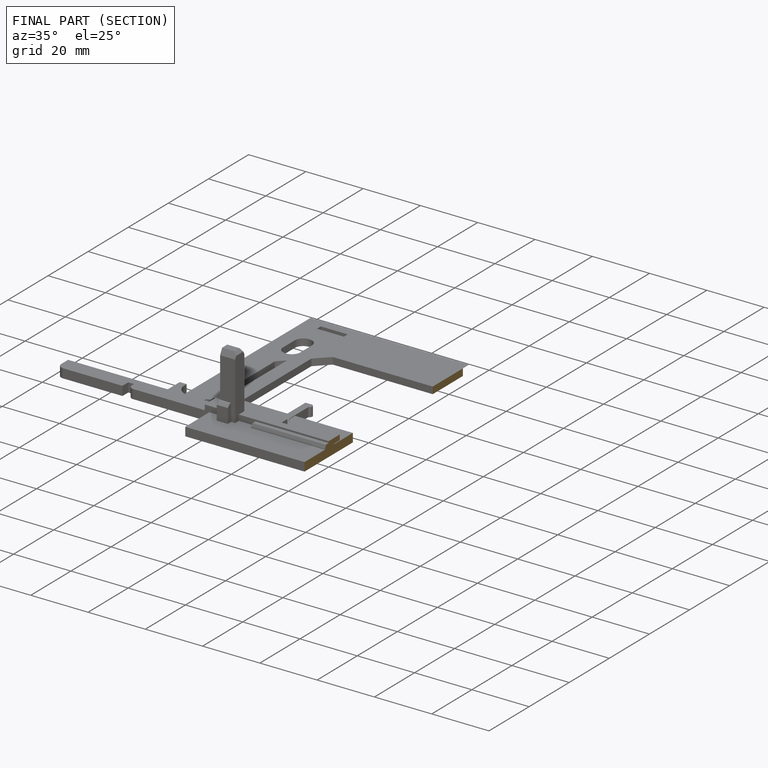
[diagram: finished part — half-section view (interior)]
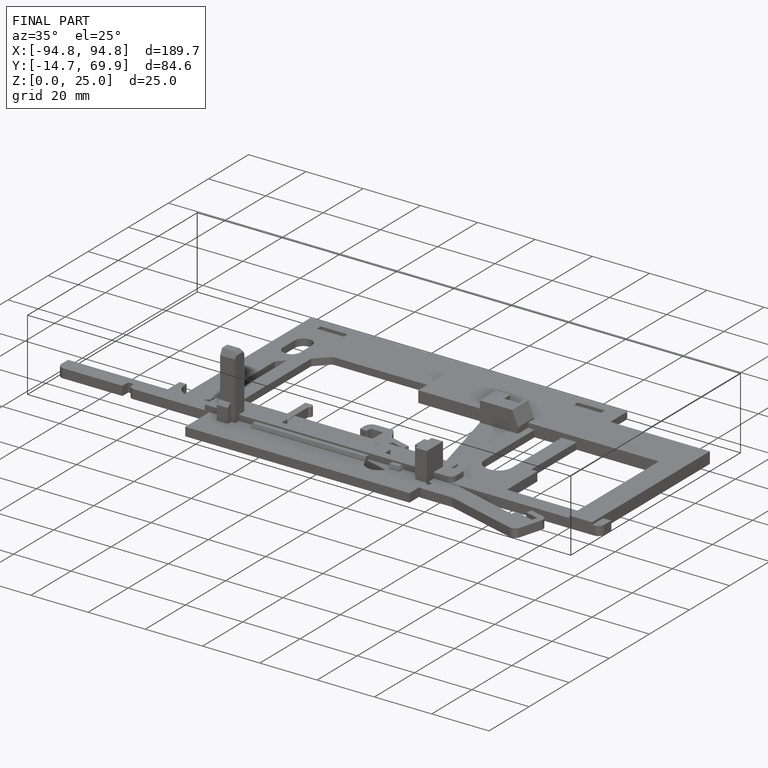
[diagram: finished part — iso view with bounding-box wireframe]
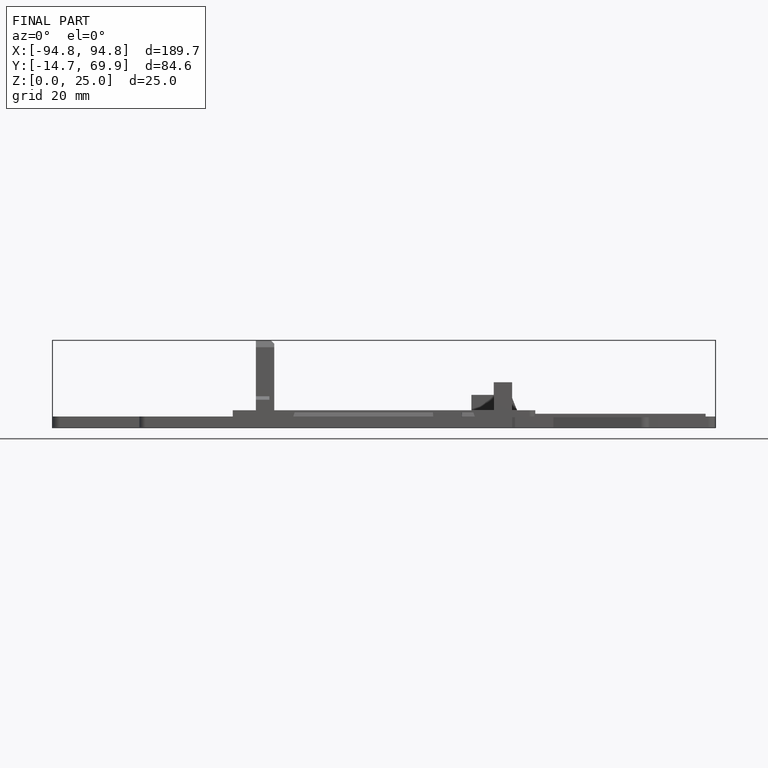
[diagram: finished part — front view with bounding-box wireframe]
